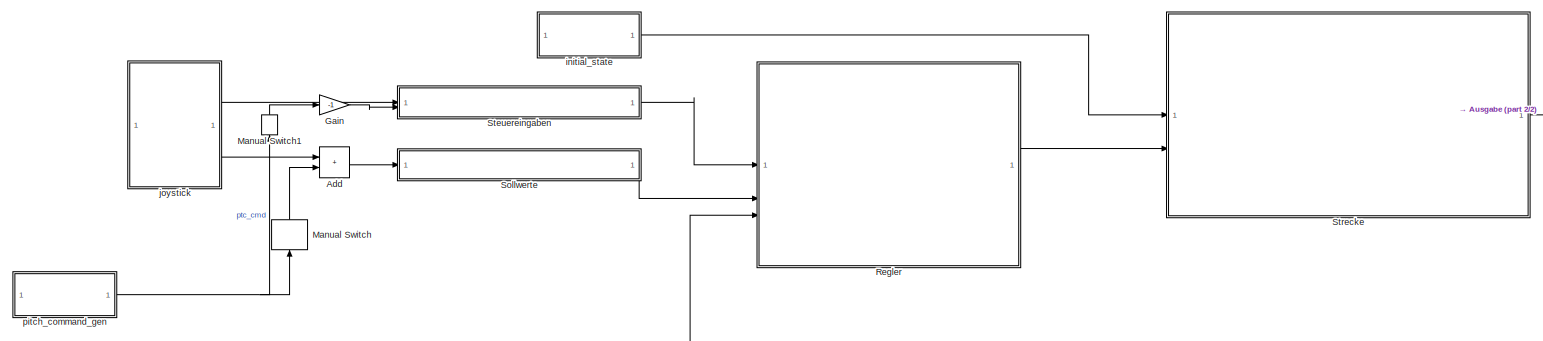
[diagram: root canvas - part 1/2, most of the canvas]
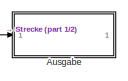
[diagram: root canvas - part 2/2, middle right region]
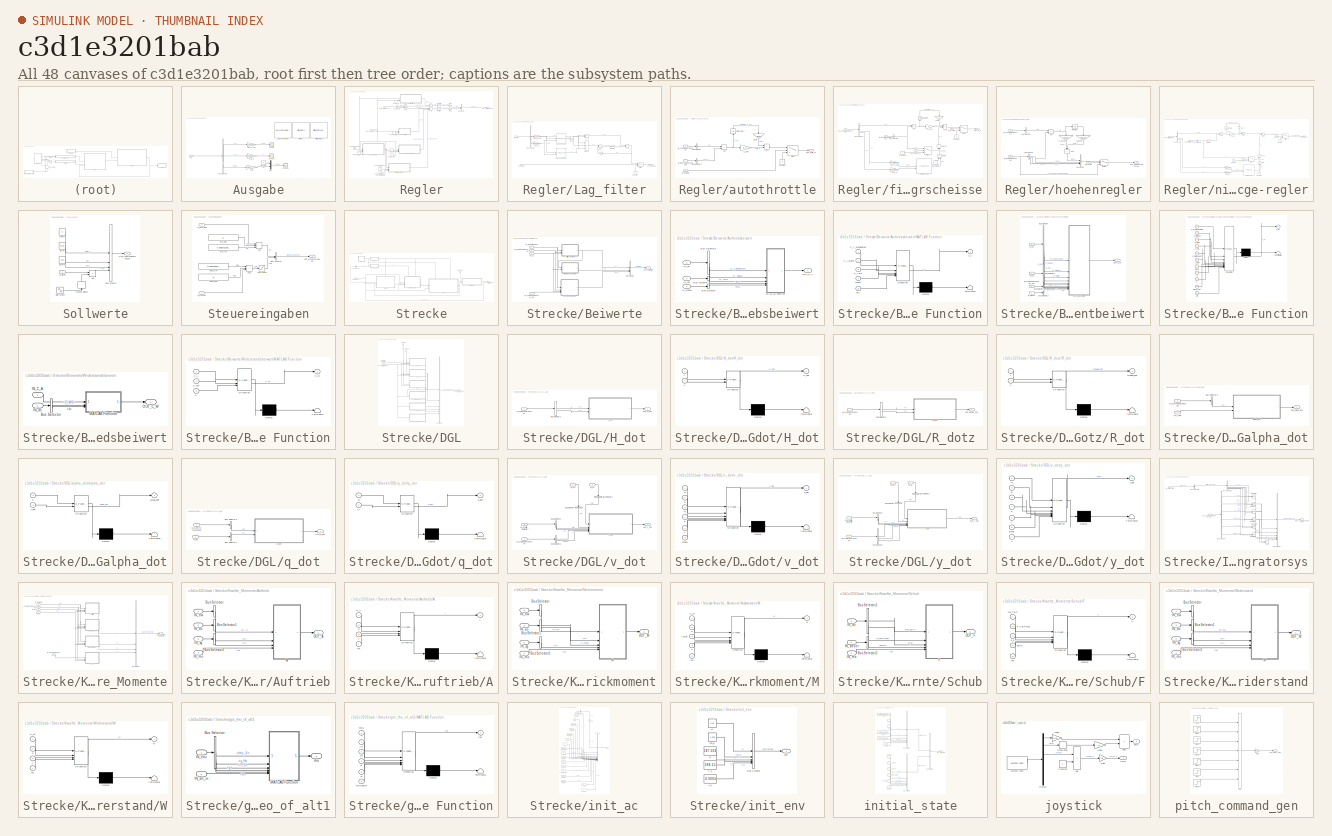
[diagram: thumbnail index - all 48 canvases of the model, root first then tree order]
MODEL slx_c3d1e3201bab
KIND model
CONFIG AbsTol = auto
CONFIG EnableMultiTasking = off
CONFIG FixedStep = 0.02
CONFIG MaxStep = auto
CONFIG MinStep = auto
CONFIG RelTol = 1e-3
CONFIG SampleTimeConstraint = Unconstrained
CONFIG SolverName = ode4
CONFIG StartTime = 0.0
CONFIG StopTime = 60
BLOCK [Sum] Add
  IconShape = rectangular
BLOCK [SubSystem] Ausgabe
BLOCK [AirspeedIndicatorBlock] Ausgabe/Airspeed Indicator
  ScaleMax = 800
  ScaleMin = 80
BLOCK [AltimeterBlock] Ausgabe/Altimeter
BLOCK [ArtificialHorizonBlock] Ausgabe/Artificial Horizon
BLOCK [BusSelector] Ausgabe/Bus Selector
  OutputSignals = V,H,theta
BLOCK [Constant] Ausgabe/Constant
  Value = 0
BLOCK [Gain] Ausgabe/Gain
  Gain = 1/0.0174533
BLOCK [Inport] Ausgabe/In1
BLOCK [Mux] Ausgabe/Mux
  DisplayOption = bar
  Inputs = 2
BLOCK [Scope] Ausgabe/Scope
  Floating = off
  NumInputPorts = 1
  ScopeSpecificationString = Simulink.scopes.TimeScopeBlockCfg('CurrentConfiguration', extmgr.ConfigurationSet(extmgr.Configuration('Core','General UI',true),extmgr.Configuration('Core','Source UI',true),extmgr.Configuration('Sources','WiredSimulink',true),extmgr.Configuration('Visuals','Time Domain',true),extmgr.Configuration('Tools','Plot Navigation',true),extmgr.Configuration('Tools','Measurements',true)),'Version','2024a'...<+1ch>
BLOCK [Scope] Ausgabe/Scope1
  Floating = off
  NumInputPorts = 1
  ScopeSpecificationString = Simulink.scopes.TimeScopeBlockCfg('CurrentConfiguration', extmgr.ConfigurationSet(extmgr.Configuration('Core','General UI',true),extmgr.Configuration('Core','Source UI',true),extmgr.Configuration('Sources','WiredSimulink',true,'DataLoggingVariableName','ScopeData1'),extmgr.Configuration('Visuals','Time Domain',true),extmgr.Configuration('Tools','Plot Navigation',true),extmgr.Configuration('Tools',...<+40ch>
BLOCK [Scope] Ausgabe/Scope2
  Floating = off
  NumInputPorts = 1
  ScopeSpecificationString = Simulink.scopes.TimeScopeBlockCfg('CurrentConfiguration', extmgr.ConfigurationSet(extmgr.Configuration('Core','General UI',true),extmgr.Configuration('Core','Source UI',true),extmgr.Configuration('Sources','WiredSimulink',true,'DataLoggingVariableName','ScopeData2'),extmgr.Configuration('Visuals','Time Domain',true),extmgr.Configuration('Tools','Plot Navigation',true),extmgr.Configuration('Tools',...<+40ch>
BLOCK [Gain] Ausgabe/m_to_ft
  Gain = 3.28084
BLOCK [Gain] Ausgabe/ms_to_knts
  Gain = 1.94384
BLOCK [Gain] Gain
  Gain = -1
  NameLocation = top
BLOCK [ManualSwitch] Manual Switch
  NameLocation = right
BLOCK [ManualSwitch] Manual Switch1
  CurrentSetting = 0
  NameLocation = right
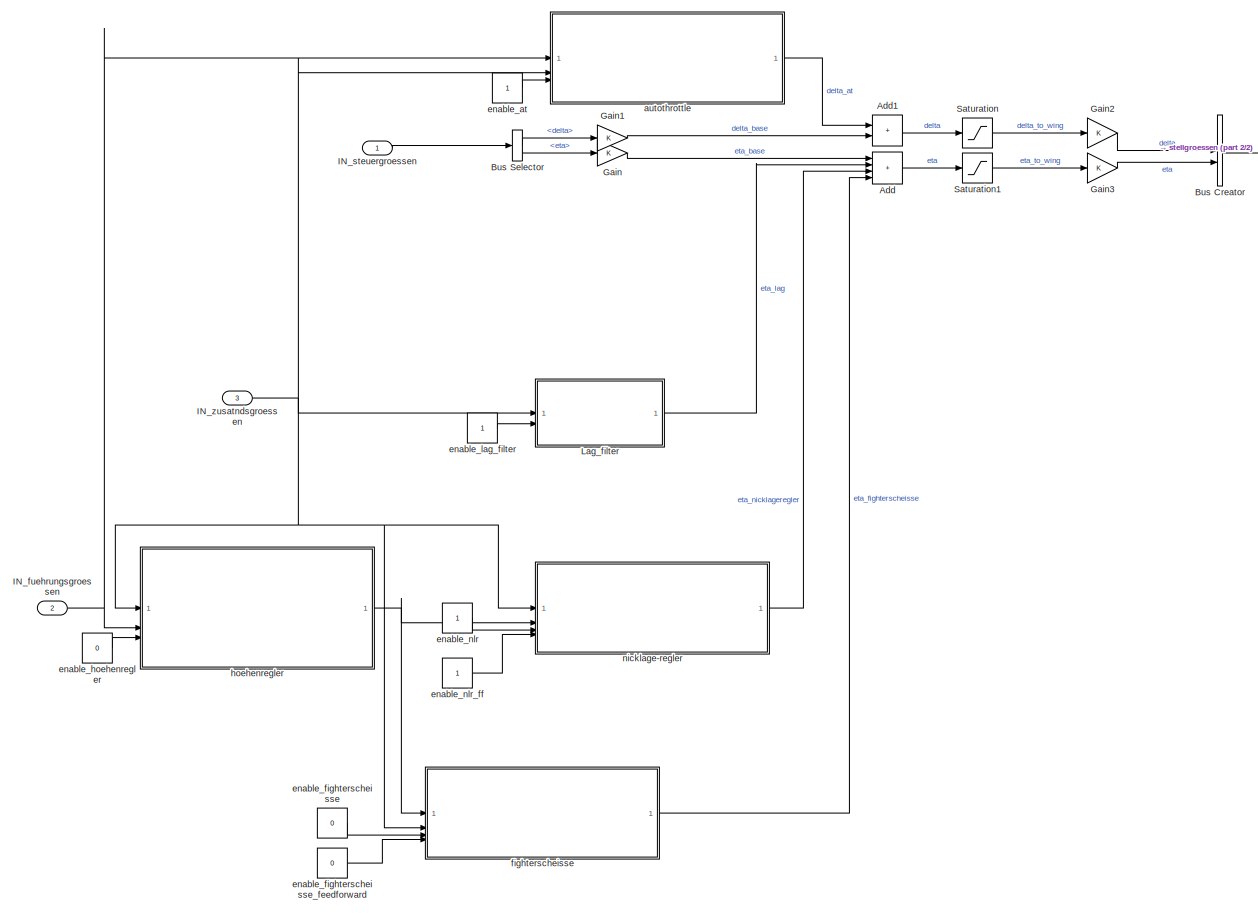
[diagram: Regler - part 1/2, most of the canvas]
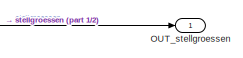
[diagram: Regler - part 2/2, top right region]
BLOCK [SubSystem] Regler
BLOCK [Sum] Regler/Add
  IconShape = rectangular
  Inputs = ++++
BLOCK [Sum] Regler/Add1
  IconShape = rectangular
BLOCK [BusCreator] Regler/Bus Creator
  DisplayOption = bar
  InheritFromInputs = on
  Inputs = 2
BLOCK [BusSelector] Regler/Bus Selector
  OutputSignals = delta,eta
BLOCK [Gain] Regler/Gain
BLOCK [Gain] Regler/Gain1
BLOCK [Gain] Regler/Gain2
BLOCK [Gain] Regler/Gain3
BLOCK [Inport] Regler/IN_fuehrungsgroessen
  NameLocation = left
  Port = 2
BLOCK [Inport] Regler/IN_steuergroessen
BLOCK [Inport] Regler/IN_zusatndsgroessen
  Port = 3
BLOCK [SubSystem] Regler/Lag_filter
BLOCK [Sum] Regler/Lag_filter/Add
  IconShape = rectangular
  Inputs = -+
BLOCK [Sum] Regler/Lag_filter/Add1
  IconShape = rectangular
BLOCK [BusSelector] Regler/Lag_filter/Bus Selector1
  OutputSignals = q,V,H
BLOCK [Constant] Regler/Lag_filter/Constant
  NameLocation = right
  Value = 0
BLOCK [Gain] Regler/Lag_filter/Gain
  Gain = -1
BLOCK [Inport] Regler/Lag_filter/IN_enable
  Port = 2
BLOCK [Inport] Regler/Lag_filter/IN_state
BLOCK [Integrator] Regler/Lag_filter/Integrator
BLOCK [Lookup_n-D] Regler/Lag_filter/Lag_k_lookup
  BreakpointsForDimension1 = [300 310 320 330 340 350 360 370 380 390 400 410 420 430 440 450 460 470 480 490 500 510 520 530 540 550 560 570 580 590 600]
  BreakpointsForDimension2 = [15000 16000 17000 18000 19000 20000 21000 22000 23000 24000 25000 26000 27000 28000 29000 30000 31000 32000 33000 34000 35000 36000 37000 38000 39000 40000 41000 42000 43000 44000 45000]
  BreakpointsForDimension3 = [5, 7]
  InputPortMap = u0,u1
  InternalRulePriority = Speed
  RndMeth = Simplest
  Table = [-1.9976095463894787 -2.0753225706470997 -2.1559415937600259 -2.2396262443393251 -2.3265447352480355 -2.416874457996534 -2.5108026232070042 -2.6085269505958921 -2.7102564123159163 -2.8162120339224832 -2.9266277576876485 -3.0417513734830788 -3.1618455229972073 -3.2871887836469087 -3.4180768391974956 -3.5548237448239162 -3.6977632951390516 -3.8472505045914884 -4.0036632106053025 -4.167403810910387 -...<+18871ch>
BLOCK [Lookup_n-D] Regler/Lag_filter/Lag_nst_lookup
  BreakpointsForDimension1 = [300 310 320 330 340 350 360 370 380 390 400 410 420 430 440 450 460 470 480 490 500 510 520 530 540 550 560 570 580 590 600]
  BreakpointsForDimension2 = [15000 16000 17000 18000 19000 20000 21000 22000 23000 24000 25000 26000 27000 28000 29000 30000 31000 32000 33000 34000 35000 36000 37000 38000 39000 40000 41000 42000 43000 44000 45000]
  BreakpointsForDimension3 = [5, 7]
  InputPortMap = u0,u1
  InternalRulePriority = Speed
  RndMeth = Simplest
  Table = [-2.4320248547469356 -2.4461261639414227 -2.4596550454821258 -2.4726374662492061 -2.4850979140208085 -2.4970595106053834 -2.5085441131709385 -2.5195724053436019 -2.5301639794038997 -2.5403374107069183 -2.5501103252844062 -2.5594994614464586 -2.5685207260831873 -2.5771892462680395 -2.5855194166815014 -2.5935249433037844 -2.6012188837657151 -2.60861368469661 -2.6157212163649342 -2.6225528048708258 -...<+18629ch>
BLOCK [Outport] Regler/Lag_filter/OUT_eta_lag
BLOCK [Product] Regler/Lag_filter/Product
  Inputs = 3
BLOCK [Product] Regler/Lag_filter/Product1
BLOCK [Switch] Regler/Lag_filter/Switch
  Criteria = u2 > Threshold
  InputSameDT = off
  SaturateOnIntegerOverflow = off
BLOCK [Gain] Regler/Lag_filter/d
  Gain = -1
BLOCK [Gain] Regler/Lag_filter/m_to_ft
  Gain = 3.28084
BLOCK [Gain] Regler/Lag_filter/ms_to_knts
  Gain = 1.94384
BLOCK [Outport] Regler/OUT_stellgroessen
BLOCK [Saturate] Regler/Saturation
  LowerLimit = 0
  UpperLimit = 1
BLOCK [Saturate] Regler/Saturation1
  LowerLimit = -20*pi/180
  UpperLimit = 20*pi/180
BLOCK [SubSystem] Regler/autothrottle
BLOCK [Sum] Regler/autothrottle/Add
  IconShape = rectangular
  Inputs = -+
BLOCK [Sum] Regler/autothrottle/Add1
  IconShape = rectangular
BLOCK [BusSelector] Regler/autothrottle/Bus Selector
  OutputSignals = V
BLOCK [BusSelector] Regler/autothrottle/Bus Selector1
  OutputSignals = vel_c
BLOCK [Constant] Regler/autothrottle/Constant
  NameLocation = right
  Value = 0
BLOCK [Inport] Regler/autothrottle/IN_enable
  Port = 3
BLOCK [Inport] Regler/autothrottle/IN_fuehrungsgroessen
BLOCK [Inport] Regler/autothrottle/IN_zusatndsgroessen
  Port = 2
BLOCK [Integrator] Regler/autothrottle/Integrator1
  LimitOutput = on
  LowerSaturationLimit = -1/0.001
  NameLocation = right
  UpperSaturationLimit = 1/0.001
BLOCK [Outport] Regler/autothrottle/OUT_delta_at
BLOCK [Switch] Regler/autothrottle/Switch
  Criteria = u2 > Threshold
  InputSameDT = off
  SaturateOnIntegerOverflow = off
BLOCK [Gain] Regler/autothrottle/i_gain
  Gain = 0.001
  NameLocation = right
BLOCK [Gain] Regler/autothrottle/p_gain
  Gain = 0.4
BLOCK [Constant] Regler/enable_at
  NameLocation = left
BLOCK [Constant] Regler/enable_fighterscheisse
  NameLocation = left
  Value = 0
BLOCK [Constant] Regler/enable_fighterscheisse_feedforward
  NameLocation = left
  Value = 0
BLOCK [Constant] Regler/enable_hoehenregler
  NameLocation = left
  Value = 0
BLOCK [Constant] Regler/enable_lag_filter
BLOCK [Constant] Regler/enable_nlr
BLOCK [Constant] Regler/enable_nlr_ff
BLOCK [SubSystem] Regler/fighterscheisse
BLOCK [Sum] Regler/fighterscheisse/Add
  IconShape = rectangular
  Inputs = -+
BLOCK [Sum] Regler/fighterscheisse/Add1
  IconShape = rectangular
  Inputs = --+
BLOCK [BusSelector] Regler/fighterscheisse/Bus Selector
  OutputSignals = q,V,H
BLOCK [BusSelector] Regler/fighterscheisse/Bus Selector1
  OutputSignals = q_c
BLOCK [Constant] Regler/fighterscheisse/Constant
  NameLocation = right
  Value = 0
BLOCK [Constant] Regler/fighterscheisse/Constant1
  Value = 0
BLOCK [Constant] Regler/fighterscheisse/Constant2
  NameLocation = right
BLOCK [Product] Regler/fighterscheisse/Divide
  Inputs = */
  NameLocation = right
BLOCK [Inport] Regler/fighterscheisse/IN_enable
  Port = 3
BLOCK [Inport] Regler/fighterscheisse/IN_enable_FF
  NameLocation = left
  Port = 4
BLOCK [Inport] Regler/fighterscheisse/IN_fuehrungsgroessen
BLOCK [Inport] Regler/fighterscheisse/IN_zusatndsgroessen
  Port = 2
BLOCK [Integrator] Regler/fighterscheisse/Integrator1
  LimitOutput = on
  LowerSaturationLimit = -0.1
  NameLocation = right
  UpperSaturationLimit = 0.1
BLOCK [Outport] Regler/fighterscheisse/OUT_q_fs
BLOCK [Product] Regler/fighterscheisse/Product
  NameLocation = right
BLOCK [Switch] Regler/fighterscheisse/Switch
  Criteria = u2 > Threshold
  InputSameDT = off
  SaturateOnIntegerOverflow = off
BLOCK [Switch] Regler/fighterscheisse/Switch1
  Criteria = u2 > Threshold
  InputSameDT = off
  SaturateOnIntegerOverflow = off
BLOCK [Gain] Regler/fighterscheisse/i_gain
  NameLocation = right
BLOCK [Lookup_n-D] Regler/fighterscheisse/k offen lookup
  BreakpointsForDimension1 = [200 210 220 230 240 250 260 270 280 290 300 310 320 330 340 350 360 370 380 390 400 410 420 430 440 450 460 470 480 490 500 510 520 530 540 550 560 570 580 590 600]
  BreakpointsForDimension2 = [10000 11000 12000 13000 14000 15000 16000 17000 18000 19000 20000 21000 22000 23000 24000 25000 26000 27000 28000 29000 30000 31000 32000 33000 34000 35000 36000 37000 38000 39000 40000]
  BreakpointsForDimension3 = [5, 7]
  InputPortMap = u0,u1
  InternalRulePriority = Speed
  RndMeth = Simplest
  Table = [-0.75968769240828538 -0.736146134850029 -0.71316486907241683 -0.69073470960094507 -0.66884654854113967 -0.647491355779479 -0.626660179173583 -0.60634414473186427 -0.5865344567827756 -0.56722239813384889 -0.54839933022067622 -0.53005669324599936 -0.51218600630906286 -0.49477886752539457 -0.4778269541371617 -0.46132202261426092 -0.44525590874628679 -0.42962052772552994 -0.41440787422114794 -0.39961...<+25079ch>
BLOCK [Gain] Regler/fighterscheisse/m_to_ft
  Gain = 3.28084
BLOCK [Gain] Regler/fighterscheisse/ms_to_knts
  Gain = 1.94384
BLOCK [Gain] Regler/fighterscheisse/p_gain
  Gain = 4
BLOCK [SubSystem] Regler/hoehenregler
BLOCK [Sum] Regler/hoehenregler/Add
  IconShape = rectangular
  Inputs = -+
BLOCK [Sum] Regler/hoehenregler/Add1
  IconShape = rectangular
  NameLocation = left
BLOCK [BusCreator] Regler/hoehenregler/Bus Creator
  DisplayOption = bar
  InheritFromInputs = on
  Inputs = 4
BLOCK [BusSelector] Regler/hoehenregler/Bus Selector
  OutputSignals = alt_c,vel_c,q_c
BLOCK [BusSelector] Regler/hoehenregler/Bus Selector1
  OutputSignals = H
BLOCK [Inport] Regler/hoehenregler/IN_enable
  Port = 3
BLOCK [Inport] Regler/hoehenregler/IN_fuehrungsgroessen
  Port = 2
BLOCK [Inport] Regler/hoehenregler/IN_zusatndsgroessen
BLOCK [Integrator] Regler/hoehenregler/Integrator
  LimitOutput = on
  LowerSaturationLimit = -0.4/0.00002
  UpperSaturationLimit = 0.4/0.00002
BLOCK [Outport] Regler/hoehenregler/OUT_fuehrungsgroessen
BLOCK [Switch] Regler/hoehenregler/Switch
  Criteria = u2 > Threshold
  InputSameDT = off
  SaturateOnIntegerOverflow = off
BLOCK [Gain] Regler/hoehenregler/i_alt_gain
  Gain = 0.00002
  NameLocation = right
BLOCK [Gain] Regler/hoehenregler/p_alt_gain
  Gain = 0.0002
  NameLocation = left
BLOCK [SubSystem] Regler/nicklage-regler
BLOCK [Sum] Regler/nicklage-regler/Add
  IconShape = rectangular
  Inputs = -+
BLOCK [Sum] Regler/nicklage-regler/Add1
  IconShape = rectangular
  Inputs = --
BLOCK [Sum] Regler/nicklage-regler/Add3
  IconShape = rectangular
BLOCK [BusSelector] Regler/nicklage-regler/Bus Selector
  OutputSignals = theta,V,H
BLOCK [BusSelector] Regler/nicklage-regler/Bus Selector1
  OutputSignals = q_c
BLOCK [Constant] Regler/nicklage-regler/Constant
  NameLocation = right
  Value = 0
BLOCK [Constant] Regler/nicklage-regler/Constant1
  Value = 0
BLOCK [Constant] Regler/nicklage-regler/Constant2
  NameLocation = right
BLOCK [Product] Regler/nicklage-regler/Divide
  Inputs = */
  NameLocation = right
BLOCK [Inport] Regler/nicklage-regler/IN_enable
  Port = 3
BLOCK [Inport] Regler/nicklage-regler/IN_enable_FF
  NameLocation = left
  Port = 4
BLOCK [Inport] Regler/nicklage-regler/IN_fuehrungsgroessen
  Port = 2
BLOCK [Inport] Regler/nicklage-regler/IN_zusatndsgroessen
BLOCK [Integrator] Regler/nicklage-regler/Integrator
BLOCK [Integrator] Regler/nicklage-regler/Integrator1
  LimitOutput = on
  LowerSaturationLimit = -0.3
  NameLocation = right
  UpperSaturationLimit = 0.3
BLOCK [Outport] Regler/nicklage-regler/OUT_eta_NLR
BLOCK [Product] Regler/nicklage-regler/Product
  NameLocation = right
BLOCK [Switch] Regler/nicklage-regler/Switch
  Criteria = u2 > Threshold
  InputSameDT = off
  SaturateOnIntegerOverflow = off
BLOCK [Switch] Regler/nicklage-regler/Switch1
  Criteria = u2 > Threshold
  InputSameDT = off
  SaturateOnIntegerOverflow = off
BLOCK [Gain] Regler/nicklage-regler/i_gain
  Gain = 2
  NameLocation = right
BLOCK [Lookup_n-D] Regler/nicklage-regler/k offen lookup
  BreakpointsForDimension1 = [200 210 220 230 240 250 260 270 280 290 300 310 320 330 340 350 360 370 380 390 400 410 420 430 440 450 460 470 480 490 500 510 520 530 540 550 560 570 580 590 600]
  BreakpointsForDimension2 = [10000 11000 12000 13000 14000 15000 16000 17000 18000 19000 20000 21000 22000 23000 24000 25000 26000 27000 28000 29000 30000 31000 32000 33000 34000 35000 36000 37000 38000 39000 40000]
  BreakpointsForDimension3 = [5, 7]
  InputPortMap = u0,u1
  InternalRulePriority = Speed
  RndMeth = Simplest
  Table = [-0.75968769240828538 -0.736146134850029 -0.71316486907241683 -0.69073470960094507 -0.66884654854113967 -0.647491355779479 -0.626660179173583 -0.60634414473186427 -0.5865344567827756 -0.56722239813384889 -0.54839933022067622 -0.53005669324599936 -0.51218600630906286 -0.49477886752539457 -0.4778269541371617 -0.46132202261426092 -0.44525590874628679 -0.42962052772552994 -0.41440787422114794 -0.39961...<+25079ch>
BLOCK [Gain] Regler/nicklage-regler/m_to_ft
  Gain = 3.28084
BLOCK [Gain] Regler/nicklage-regler/ms_to_knts
  Gain = 1.94384
BLOCK [Gain] Regler/nicklage-regler/p_gain
  Gain = 5
BLOCK [SubSystem] Sollwerte
BLOCK [Sum] Sollwerte/Add
  IconShape = rectangular
BLOCK [BusCreator] Sollwerte/Bus Creator
  DisplayOption = bar
  InheritFromInputs = on
  Inputs = 4
BLOCK [Inport] Sollwerte/IN_pitch
BLOCK [ManualSwitch] Sollwerte/Manual Switch
  CurrentSetting = 0
  NameLocation = right
BLOCK [Outport] Sollwerte/OUT_fuehrungsgroessen
BLOCK [Sin] Sollwerte/Sine Wave
  Amplitude = 0.1
  SampleTime = 0
BLOCK [Constant] Sollwerte/alt_m
  Value = 9750
BLOCK [Constant] Sollwerte/theta
  Value = 0
BLOCK [Constant] Sollwerte/vel_ms
  Value = 265
BLOCK [SubSystem] Steuereingaben
BLOCK [Sum] Steuereingaben/Add
  IconShape = rectangular
  Inputs = +++
BLOCK [Sum] Steuereingaben/Add1
  IconShape = rectangular
  Inputs = +++
BLOCK [BusCreator] Steuereingaben/Bus Creator
  DisplayOption = bar
  InheritFromInputs = on
  Inputs = 2
BLOCK [Inport] Steuereingaben/IN_eta_mod
  Port = 2
BLOCK [Inport] Steuereingaben/IN_thrust
BLOCK [Outport] Steuereingaben/OUT_steuergroessen
BLOCK [Saturate] Steuereingaben/Saturation
  LowerLimit = 0
  UpperLimit = 1
BLOCK [Constant] Steuereingaben/delta_dist
  Value = 0
BLOCK [Constant] Steuereingaben/delta_ref
  Value = 0.378775311827620
BLOCK [Constant] Steuereingaben/eta_dist
  Value = 0
BLOCK [Constant] Steuereingaben/eta_ref  
  Value = 0.098372238870606
BLOCK [SubSystem] Strecke
BLOCK [SubSystem] Strecke/Beiwerte
  PortSchema = {"entries":[{"content":{"sides":[{"content":{"connectorIds":["In1","In2","In3"]},"type":"ConnectorPlacement.EquallySpacedRectSide","uuid":"da868e00-0983-4992-b3a2-0cb597f348b4"},{"content":{"connectorIds":["Out1"],"side":"RIGHT"},"type":"ConnectorPlacement.EquallySpacedRectSide","uuid":"845dd281-7800-4d97-986c-16221190292f"},{"content":{"connectorIds":["In4"],"side":"TOP"},"type":"ConnectorPlaceme...<+257ch>
BLOCK [SubSystem] Strecke/Beiwerte/Auftriebsbeiwert
BLOCK [BusSelector] Strecke/Beiwerte/Auftriebsbeiwert/Bus Selector
  OutputSignals = eta
BLOCK [BusSelector] Strecke/Beiwerte/Auftriebsbeiwert/Bus Selector1
  OutputSignals = alpha
BLOCK [BusSelector] Strecke/Beiwerte/Auftriebsbeiwert/Bus Selector2
  OutputSignals = C_A_alpha0eta0,C_Aalpha,C_Aeta
BLOCK [Inport] Strecke/Beiwerte/Auftriebsbeiwert/IN_ac
  NameLocation = left
  Port = 3
BLOCK [Inport] Strecke/Beiwerte/Auftriebsbeiwert/IN_steuer
  NameLocation = left
BLOCK [Inport] Strecke/Beiwerte/Auftriebsbeiwert/IN_zg
  NameLocation = left
  Port = 2
BLOCK [SubSystem] Strecke/Beiwerte/Auftriebsbeiwert/MATLAB Function
  ErrorFcn = Stateflow.Translate.translate
  PermitHierarchicalResolution = ExplicitOnly
  SFBlockType = MATLAB Function
  TreatAsAtomicUnit = on
BLOCK [Demux] Strecke/Beiwerte/Auftriebsbeiwert/MATLAB Function/ Demux 
  Outputs = 1
BLOCK [S-Function] Strecke/Beiwerte/Auftriebsbeiwert/MATLAB Function/ SFunction 
  EnableBusSupport = on
  FunctionName = sf_sfun
  PortCounts = [5 2]
  SFcnIsStateOwnerBlock = off
  SFunctionDeploymentMode = off
  Tag = Stateflow S-Function 12
BLOCK [Terminator] Strecke/Beiwerte/Auftriebsbeiwert/MATLAB Function/ Terminator 
BLOCK [Inport] Strecke/Beiwerte/Auftriebsbeiwert/MATLAB Function/C_A_alpha0eta0
BLOCK [Inport] Strecke/Beiwerte/Auftriebsbeiwert/MATLAB Function/C_Aalpha
  Port = 2
BLOCK [Inport] Strecke/Beiwerte/Auftriebsbeiwert/MATLAB Function/C_Aeta
  Port = 3
BLOCK [Inport] Strecke/Beiwerte/Auftriebsbeiwert/MATLAB Function/alpha
  Port = 4
BLOCK [Outport] Strecke/Beiwerte/Auftriebsbeiwert/MATLAB Function/c_A
BLOCK [Inport] Strecke/Beiwerte/Auftriebsbeiwert/MATLAB Function/eta
  Port = 5
BLOCK [Outport] Strecke/Beiwerte/Auftriebsbeiwert/OUT_C_A
BLOCK [BusCreator] Strecke/Beiwerte/Bus Creator
  DisplayOption = bar
  InheritFromInputs = on
  Inputs = 3
BLOCK [Inport] Strecke/Beiwerte/IN_Steuereigaben
  NameLocation = left
BLOCK [Inport] Strecke/Beiwerte/IN_Zustandsgroessen
  NameLocation = left
  Port = 2
BLOCK [Inport] Strecke/Beiwerte/IN_ac
  NameLocation = left
  Port = 4
BLOCK [Inport] Strecke/Beiwerte/IN_zustandsgroessen_dot
  NameLocation = left
  Port = 3
BLOCK [SubSystem] Strecke/Beiwerte/Nickmomentbeiwert
BLOCK [BusSelector] Strecke/Beiwerte/Nickmomentbeiwert/Bus Selector
  OutputSignals = C_m_alpha0eta0,C_malpha,C_meta,C_mq,C_madot,l_mue
BLOCK [BusSelector] Strecke/Beiwerte/Nickmomentbeiwert/Bus Selector1
  OutputSignals = alpha,q,V
BLOCK [BusSelector] Strecke/Beiwerte/Nickmomentbeiwert/Bus Selector2
  OutputSignals = alpha_dot
BLOCK [BusSelector] Strecke/Beiwerte/Nickmomentbeiwert/Bus Selector3
  OutputSignals = eta
BLOCK [Inport] Strecke/Beiwerte/Nickmomentbeiwert/IN_ac
  Port = 3
BLOCK [Inport] Strecke/Beiwerte/Nickmomentbeiwert/IN_steuer
BLOCK [Inport] Strecke/Beiwerte/Nickmomentbeiwert/IN_zg
  Port = 2
BLOCK [Inport] Strecke/Beiwerte/Nickmomentbeiwert/IN_zustandsgroessen_dot
  Port = 4
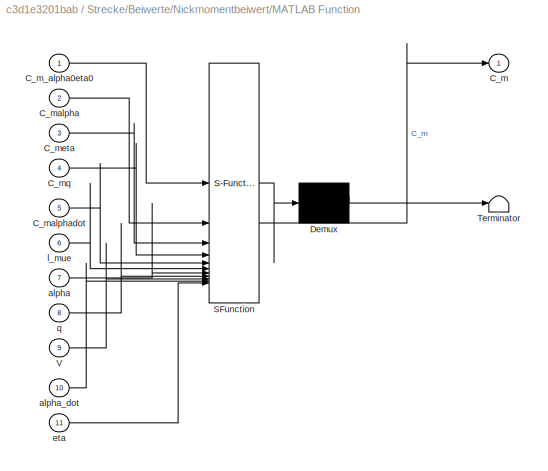
BLOCK [SubSystem] Strecke/Beiwerte/Nickmomentbeiwert/MATLAB Function
  ErrorFcn = Stateflow.Translate.translate
  PermitHierarchicalResolution = ExplicitOnly
  SFBlockType = MATLAB Function
  TreatAsAtomicUnit = on
BLOCK [Demux] Strecke/Beiwerte/Nickmomentbeiwert/MATLAB Function/ Demux 
  Outputs = 1
BLOCK [S-Function] Strecke/Beiwerte/Nickmomentbeiwert/MATLAB Function/ SFunction 
  EnableBusSupport = on
  FunctionName = sf_sfun
  PortCounts = [11 2]
  SFcnIsStateOwnerBlock = off
  SFunctionDeploymentMode = off
  Tag = Stateflow S-Function 14
BLOCK [Terminator] Strecke/Beiwerte/Nickmomentbeiwert/MATLAB Function/ Terminator 
BLOCK [Outport] Strecke/Beiwerte/Nickmomentbeiwert/MATLAB Function/C_m
BLOCK [Inport] Strecke/Beiwerte/Nickmomentbeiwert/MATLAB Function/C_m_alpha0eta0
BLOCK [Inport] Strecke/Beiwerte/Nickmomentbeiwert/MATLAB Function/C_malpha
  Port = 2
BLOCK [Inport] Strecke/Beiwerte/Nickmomentbeiwert/MATLAB Function/C_malphadot
  Port = 5
BLOCK [Inport] Strecke/Beiwerte/Nickmomentbeiwert/MATLAB Function/C_meta
  Port = 3
BLOCK [Inport] Strecke/Beiwerte/Nickmomentbeiwert/MATLAB Function/C_mq
  Port = 4
BLOCK [Inport] Strecke/Beiwerte/Nickmomentbeiwert/MATLAB Function/V
  Port = 9
BLOCK [Inport] Strecke/Beiwerte/Nickmomentbeiwert/MATLAB Function/alpha
  Port = 7
BLOCK [Inport] Strecke/Beiwerte/Nickmomentbeiwert/MATLAB Function/alpha_dot
  Port = 10
BLOCK [Inport] Strecke/Beiwerte/Nickmomentbeiwert/MATLAB Function/eta
  Port = 11
BLOCK [Inport] Strecke/Beiwerte/Nickmomentbeiwert/MATLAB Function/l_mue
  Port = 6
BLOCK [Inport] Strecke/Beiwerte/Nickmomentbeiwert/MATLAB Function/q
  Port = 8
BLOCK [Outport] Strecke/Beiwerte/Nickmomentbeiwert/OUT_C_m
BLOCK [Outport] Strecke/Beiwerte/OUT_beiwerte
BLOCK [SubSystem] Strecke/Beiwerte/Widerstandsbeiwert
BLOCK [BusSelector] Strecke/Beiwerte/Widerstandsbeiwert/Bus Selector
  OutputSignals = C_W0,k
BLOCK [Inport] Strecke/Beiwerte/Widerstandsbeiwert/IN_C_A
  NameLocation = left
BLOCK [Inport] Strecke/Beiwerte/Widerstandsbeiwert/IN_ac
  NameLocation = left
  Port = 2
BLOCK [SubSystem] Strecke/Beiwerte/Widerstandsbeiwert/MATLAB Function
  ErrorFcn = Stateflow.Translate.translate
  PermitHierarchicalResolution = ExplicitOnly
  SFBlockType = MATLAB Function
  TreatAsAtomicUnit = on
BLOCK [Demux] Strecke/Beiwerte/Widerstandsbeiwert/MATLAB Function/ Demux 
  Outputs = 1
BLOCK [S-Function] Strecke/Beiwerte/Widerstandsbeiwert/MATLAB Function/ SFunction 
  EnableBusSupport = on
  FunctionName = sf_sfun
  PortCounts = [3 2]
  SFcnIsStateOwnerBlock = off
  SFunctionDeploymentMode = off
  Tag = Stateflow S-Function 13
BLOCK [Terminator] Strecke/Beiwerte/Widerstandsbeiwert/MATLAB Function/ Terminator 
BLOCK [Inport] Strecke/Beiwerte/Widerstandsbeiwert/MATLAB Function/C_A
BLOCK [Outport] Strecke/Beiwerte/Widerstandsbeiwert/MATLAB Function/C_W
BLOCK [Inport] Strecke/Beiwerte/Widerstandsbeiwert/MATLAB Function/C_W0
  Port = 2
BLOCK [Inport] Strecke/Beiwerte/Widerstandsbeiwert/MATLAB Function/k
  Port = 3
BLOCK [Outport] Strecke/Beiwerte/Widerstandsbeiwert/OUT_C_W
BLOCK [BusSelector] Strecke/Bus Selector
  OutputSignals = H
BLOCK [SubSystem] Strecke/DGL
  PortSchema = {"entries":[{"content":{"sides":[{"content":{"connectorIds":["In1","In2"]},"type":"ConnectorPlacement.EquallySpacedRectSide","uuid":"da868e00-0983-4992-b3a2-0cb597f348b4"},{"content":{"connectorIds":["Out1"],"side":"RIGHT"},"type":"ConnectorPlacement.EquallySpacedRectSide","uuid":"845dd281-7800-4d97-986c-16221190292f"},{"content":{"connectorIds":["In3","In4"],"side":"TOP"},"type":"ConnectorPlaceme...<+257ch>
BLOCK [BusCreator] Strecke/DGL/Bus Creator
  DisplayOption = bar
  InheritFromInputs = on
  Inputs = 6
BLOCK [SubSystem] Strecke/DGL/H_dot
BLOCK [BusSelector] Strecke/DGL/H_dot/Bus Selector3
  OutputSignals = y,V
BLOCK [SubSystem] Strecke/DGL/H_dot/H_dot
  ErrorFcn = Stateflow.Translate.translate
  PermitHierarchicalResolution = ExplicitOnly
  SFBlockType = MATLAB Function
  TreatAsAtomicUnit = on
BLOCK [Demux] Strecke/DGL/H_dot/H_dot/ Demux 
  Outputs = 1
BLOCK [S-Function] Strecke/DGL/H_dot/H_dot/ SFunction 
  EnableBusSupport = on
  FunctionName = sf_sfun
  PortCounts = [2 2]
  SFcnIsStateOwnerBlock = off
  SFunctionDeploymentMode = off
  Tag = Stateflow S-Function 6
BLOCK [Terminator] Strecke/DGL/H_dot/H_dot/ Terminator 
BLOCK [Outport] Strecke/DGL/H_dot/H_dot/H_dot
BLOCK [Inport] Strecke/DGL/H_dot/H_dot/V
  Port = 2
BLOCK [Inport] Strecke/DGL/H_dot/H_dot/y
BLOCK [Inport] Strecke/DGL/H_dot/IN_zustandsgroessen
BLOCK [Outport] Strecke/DGL/H_dot/OUT_H_dot
BLOCK [Inport] Strecke/DGL/IN_aircraft
  NameLocation = left
  Port = 4
BLOCK [Inport] Strecke/DGL/IN_enviroment
  NameLocation = right
  Port = 3
BLOCK [Inport] Strecke/DGL/IN_kraefte_momente
  NameLocation = left
BLOCK [Inport] Strecke/DGL/IN_zustandsgroessen
  NameLocation = left
  Port = 2
BLOCK [Outport] Strecke/DGL/OUT_zustandsgroessen_dot
BLOCK [SubSystem] Strecke/DGL/R_dotz
BLOCK [BusSelector] Strecke/DGL/R_dotz/Bus Selector3
  OutputSignals = y,V
BLOCK [Inport] Strecke/DGL/R_dotz/IN_zustandsgroessen
BLOCK [Outport] Strecke/DGL/R_dotz/OUT_Range_dot
BLOCK [SubSystem] Strecke/DGL/R_dotz/R_dot
  ErrorFcn = Stateflow.Translate.translate
  PermitHierarchicalResolution = ExplicitOnly
  SFBlockType = MATLAB Function
  TreatAsAtomicUnit = on
BLOCK [Demux] Strecke/DGL/R_dotz/R_dot/ Demux 
  Outputs = 1
BLOCK [S-Function] Strecke/DGL/R_dotz/R_dot/ SFunction 
  EnableBusSupport = on
  FunctionName = sf_sfun
  PortCounts = [2 2]
  SFcnIsStateOwnerBlock = off
  SFunctionDeploymentMode = off
  Tag = Stateflow S-Function 7
BLOCK [Terminator] Strecke/DGL/R_dotz/R_dot/ Terminator 
BLOCK [Outport] Strecke/DGL/R_dotz/R_dot/Range_dot
BLOCK [Inport] Strecke/DGL/R_dotz/R_dot/V
  Port = 2
BLOCK [Inport] Strecke/DGL/R_dotz/R_dot/y
BLOCK [SubSystem] Strecke/DGL/alpha_dot
BLOCK [BusSelector] Strecke/DGL/alpha_dot/Bus Selector3
  OutputSignals = q
BLOCK [Inport] Strecke/DGL/alpha_dot/IN_y_dot
BLOCK [Inport] Strecke/DGL/alpha_dot/IN_zustandsgroessen
  Port = 2
BLOCK [Outport] Strecke/DGL/alpha_dot/OUT_alpha_dot
BLOCK [SubSystem] Strecke/DGL/alpha_dot/alpha_dot
  ErrorFcn = Stateflow.Translate.translate
  PermitHierarchicalResolution = ExplicitOnly
  SFBlockType = MATLAB Function
  TreatAsAtomicUnit = on
BLOCK [Demux] Strecke/DGL/alpha_dot/alpha_dot/ Demux 
  Outputs = 1
BLOCK [S-Function] Strecke/DGL/alpha_dot/alpha_dot/ SFunction 
  EnableBusSupport = on
  FunctionName = sf_sfun
  PortCounts = [2 2]
  SFcnIsStateOwnerBlock = off
  SFunctionDeploymentMode = off
  Tag = Stateflow S-Function 5
BLOCK [Terminator] Strecke/DGL/alpha_dot/alpha_dot/ Terminator 
BLOCK [Outport] Strecke/DGL/alpha_dot/alpha_dot/alpha_dot
BLOCK [Inport] Strecke/DGL/alpha_dot/alpha_dot/q
BLOCK [Inport] Strecke/DGL/alpha_dot/alpha_dot/y_dot
  Port = 2
BLOCK [SubSystem] Strecke/DGL/q_dot
BLOCK [BusSelector] Strecke/DGL/q_dot/Bus Selector1
  OutputSignals = I_y
BLOCK [BusSelector] Strecke/DGL/q_dot/Bus Selector2
  OutputSignals = M
BLOCK [Inport] Strecke/DGL/q_dot/IN_ac
BLOCK [Inport] Strecke/DGL/q_dot/IN_kraefte_momente
  Port = 2
BLOCK [Outport] Strecke/DGL/q_dot/OUT_q_dot
BLOCK [SubSystem] Strecke/DGL/q_dot/q_dot
  ErrorFcn = Stateflow.Translate.translate
  PermitHierarchicalResolution = ExplicitOnly
  SFBlockType = MATLAB Function
  TreatAsAtomicUnit = on
BLOCK [Demux] Strecke/DGL/q_dot/q_dot/ Demux 
  Outputs = 1
BLOCK [S-Function] Strecke/DGL/q_dot/q_dot/ SFunction 
  EnableBusSupport = on
  FunctionName = sf_sfun
  PortCounts = [2 2]
  SFcnIsStateOwnerBlock = off
  SFunctionDeploymentMode = off
  Tag = Stateflow S-Function 4
BLOCK [Terminator] Strecke/DGL/q_dot/q_dot/ Terminator 
BLOCK [Inport] Strecke/DGL/q_dot/q_dot/I_y
  Port = 2
BLOCK [Inport] Strecke/DGL/q_dot/q_dot/M
BLOCK [Outport] Strecke/DGL/q_dot/q_dot/q_dot
BLOCK [SubSystem] Strecke/DGL/v_dot
BLOCK [BusSelector] Strecke/DGL/v_dot/Bus Selector
  NameLocation = left
  OutputSignals = g
BLOCK [BusSelector] Strecke/DGL/v_dot/Bus Selector1
  NameLocation = left
  OutputSignals = m
BLOCK [BusSelector] Strecke/DGL/v_dot/Bus Selector2
  OutputSignals = W,F
BLOCK [BusSelector] Strecke/DGL/v_dot/Bus Selector3
  OutputSignals = y,alpha
BLOCK [Inport] Strecke/DGL/v_dot/IN_ac
  Port = 2
BLOCK [Inport] Strecke/DGL/v_dot/IN_env
BLOCK [Inport] Strecke/DGL/v_dot/IN_kraefte_momente
  Port = 3
BLOCK [Inport] Strecke/DGL/v_dot/IN_zustandsgroessen
  Port = 4
BLOCK [Outport] Strecke/DGL/v_dot/OUT_v_dot
BLOCK [SubSystem] Strecke/DGL/v_dot/v_dot
  ErrorFcn = Stateflow.Translate.translate
  PermitHierarchicalResolution = ExplicitOnly
  SFBlockType = MATLAB Function
  TreatAsAtomicUnit = on
BLOCK [Demux] Strecke/DGL/v_dot/v_dot/ Demux 
  Outputs = 1
BLOCK [S-Function] Strecke/DGL/v_dot/v_dot/ SFunction 
  EnableBusSupport = on
  FunctionName = sf_sfun
  PortCounts = [6 2]
  SFcnIsStateOwnerBlock = off
  SFunctionDeploymentMode = off
  Tag = Stateflow S-Function 2
BLOCK [Terminator] Strecke/DGL/v_dot/v_dot/ Terminator 
BLOCK [Inport] Strecke/DGL/v_dot/v_dot/F
  Port = 4
BLOCK [Inport] Strecke/DGL/v_dot/v_dot/W
  Port = 3
BLOCK [Inport] Strecke/DGL/v_dot/v_dot/alpha
  Port = 6
BLOCK [Inport] Strecke/DGL/v_dot/v_dot/g
  Port = 2
BLOCK [Inport] Strecke/DGL/v_dot/v_dot/m
BLOCK [Outport] Strecke/DGL/v_dot/v_dot/v_dot
BLOCK [Inport] Strecke/DGL/v_dot/v_dot/y
  Port = 5
BLOCK [SubSystem] Strecke/DGL/y_dot
BLOCK [BusSelector] Strecke/DGL/y_dot/Bus Selector
  NameLocation = left
  OutputSignals = g
BLOCK [BusSelector] Strecke/DGL/y_dot/Bus Selector1
  NameLocation = left
  OutputSignals = m
BLOCK [BusSelector] Strecke/DGL/y_dot/Bus Selector2
  OutputSignals = A,F
BLOCK [BusSelector] Strecke/DGL/y_dot/Bus Selector3
  OutputSignals = y,alpha,V
BLOCK [Inport] Strecke/DGL/y_dot/IN_ac
  Port = 2
BLOCK [Inport] Strecke/DGL/y_dot/IN_env
BLOCK [Inport] Strecke/DGL/y_dot/IN_kraefte_momente
  Port = 3
BLOCK [Inport] Strecke/DGL/y_dot/IN_zustandsgroessen
  Port = 4
BLOCK [Outport] Strecke/DGL/y_dot/OUT_y_dot
BLOCK [SubSystem] Strecke/DGL/y_dot/y_dot
  ErrorFcn = Stateflow.Translate.translate
  PermitHierarchicalResolution = ExplicitOnly
  SFBlockType = MATLAB Function
  TreatAsAtomicUnit = on
BLOCK [Demux] Strecke/DGL/y_dot/y_dot/ Demux 
  Outputs = 1
BLOCK [S-Function] Strecke/DGL/y_dot/y_dot/ SFunction 
  EnableBusSupport = on
  FunctionName = sf_sfun
  PortCounts = [7 2]
  SFcnIsStateOwnerBlock = off
  SFunctionDeploymentMode = off
  Tag = Stateflow S-Function 3
BLOCK [Terminator] Strecke/DGL/y_dot/y_dot/ Terminator 
BLOCK [Inport] Strecke/DGL/y_dot/y_dot/A
  Port = 3
BLOCK [Inport] Strecke/DGL/y_dot/y_dot/F
  Port = 4
BLOCK [Inport] Strecke/DGL/y_dot/y_dot/V
  Port = 7
BLOCK [Inport] Strecke/DGL/y_dot/y_dot/alpha
  Port = 6
BLOCK [Inport] Strecke/DGL/y_dot/y_dot/g
  Port = 2
BLOCK [Inport] Strecke/DGL/y_dot/y_dot/m
BLOCK [Inport] Strecke/DGL/y_dot/y_dot/y
  Port = 5
BLOCK [Outport] Strecke/DGL/y_dot/y_dot/y_dot
BLOCK [Inport] Strecke/IN_StellGroessen
  Port = 2
BLOCK [Inport] Strecke/IN_initial_state
  NameLocation = top
BLOCK [SubSystem] Strecke/Integratorsys
BLOCK [Sum] Strecke/Integratorsys/Add
  IconShape = rectangular
BLOCK [BusCreator] Strecke/Integratorsys/Bus Creator
  DisplayOption = bar
  InheritFromInputs = on
  Inputs = 7
BLOCK [BusSelector] Strecke/Integratorsys/Bus Selector
  OutputSignals = v_dot,y_dot,q_dot,alpha_dot,H_dot,Range_dot
BLOCK [BusSelector] Strecke/Integratorsys/Bus Selector1
  OutputSignals = initial_state_abs,initial_state_dot
BLOCK [BusSelector] Strecke/Integratorsys/Bus Selector2
  OutputSignals = V_0,y_0,q_0,alpha_0,H_0,R_0
BLOCK [Inport] Strecke/Integratorsys/IN_initial_state
BLOCK [Inport] Strecke/Integratorsys/IN_zustandsgroessen_dot
  Port = 2
BLOCK [Integrator] Strecke/Integratorsys/Integrator
  InitialConditionSource = external
BLOCK [Integrator] Strecke/Integratorsys/Integrator1
  InitialConditionSource = external
BLOCK [Integrator] Strecke/Integratorsys/Integrator2
  InitialConditionSource = external
BLOCK [Integrator] Strecke/Integratorsys/Integrator3
  InitialConditionSource = external
BLOCK [Integrator] Strecke/Integratorsys/Integrator4
  InitialConditionSource = external
BLOCK [Integrator] Strecke/Integratorsys/Integrator5
  InitialConditionSource = external
BLOCK [Outport] Strecke/Integratorsys/OUT_zustandsgroessen
BLOCK [SubSystem] Strecke/Kraefte_Momente
  PortSchema = {"entries":[{"content":{"sides":[{"content":{"connectorIds":["In1","In2","In3"]},"type":"ConnectorPlacement.EquallySpacedRectSide","uuid":"7b0f2669-d239-479f-ac51-e28c31c4b0e7"},{"content":{"connectorIds":["Out1"],"side":"RIGHT"},"type":"ConnectorPlacement.EquallySpacedRectSide","uuid":"e76e6a99-f945-4a89-9fd0-954498cc0474"},{"content":{"connectorIds":["In4","In5"],"side":"TOP"},"type":"ConnectorP...<+263ch>
BLOCK [SubSystem] Strecke/Kraefte_Momente/Auftrieb
BLOCK [SubSystem] Strecke/Kraefte_Momente/Auftrieb/A
  ErrorFcn = Stateflow.Translate.translate
  PermitHierarchicalResolution = ExplicitOnly
  SFBlockType = MATLAB Function
  TreatAsAtomicUnit = on
BLOCK [Demux] Strecke/Kraefte_Momente/Auftrieb/A/ Demux 
  Outputs = 1
BLOCK [S-Function] Strecke/Kraefte_Momente/Auftrieb/A/ SFunction 
  EnableBusSupport = on
  FunctionName = sf_sfun
  PortCounts = [4 2]
  SFcnIsStateOwnerBlock = off
  SFunctionDeploymentMode = off
  Tag = Stateflow S-Function 8
BLOCK [Terminator] Strecke/Kraefte_Momente/Auftrieb/A/ Terminator 
BLOCK [Outport] Strecke/Kraefte_Momente/Auftrieb/A/A
BLOCK [Inport] Strecke/Kraefte_Momente/Auftrieb/A/C_A
BLOCK [Inport] Strecke/Kraefte_Momente/Auftrieb/A/S
  Port = 2
BLOCK [Inport] Strecke/Kraefte_Momente/Auftrieb/A/V
  Port = 3
BLOCK [Inport] Strecke/Kraefte_Momente/Auftrieb/A/rho
  Port = 4
BLOCK [BusSelector] Strecke/Kraefte_Momente/Auftrieb/Bus Selector
  OutputSignals = C_A
BLOCK [BusSelector] Strecke/Kraefte_Momente/Auftrieb/Bus Selector1
  OutputSignals = S
BLOCK [BusSelector] Strecke/Kraefte_Momente/Auftrieb/Bus Selector2
  OutputSignals = V
BLOCK [Inport] Strecke/Kraefte_Momente/Auftrieb/IN_ac
  Port = 3
BLOCK [Inport] Strecke/Kraefte_Momente/Auftrieb/IN_bw
BLOCK [Inport] Strecke/Kraefte_Momente/Auftrieb/IN_rho
  Port = 4
BLOCK [Inport] Strecke/Kraefte_Momente/Auftrieb/IN_zg
  Port = 2
BLOCK [Outport] Strecke/Kraefte_Momente/Auftrieb/OUT_A
BLOCK [BusCreator] Strecke/Kraefte_Momente/Bus Creator
  DisplayOption = bar
  InheritFromInputs = on
  Inputs = 4
BLOCK [Inport] Strecke/Kraefte_Momente/IN_ac
  NameLocation = left
  Port = 5
BLOCK [Inport] Strecke/Kraefte_Momente/IN_beiwerte
  NameLocation = left
  Port = 2
BLOCK [Inport] Strecke/Kraefte_Momente/IN_rho
  NameLocation = left
  Port = 4
BLOCK [Inport] Strecke/Kraefte_Momente/IN_steuereingaben
BLOCK [Inport] Strecke/Kraefte_Momente/IN_zustandsgroessen
  NameLocation = left
  Port = 3
BLOCK [SubSystem] Strecke/Kraefte_Momente/Nickmoment
BLOCK [BusSelector] Strecke/Kraefte_Momente/Nickmoment/Bus Selector
  OutputSignals = C_m
BLOCK [BusSelector] Strecke/Kraefte_Momente/Nickmoment/Bus Selector1
  OutputSignals = S,l_mue
BLOCK [BusSelector] Strecke/Kraefte_Momente/Nickmoment/Bus Selector2
  OutputSignals = V
BLOCK [Inport] Strecke/Kraefte_Momente/Nickmoment/IN_ac
  Port = 3
BLOCK [Inport] Strecke/Kraefte_Momente/Nickmoment/IN_bw
BLOCK [Inport] Strecke/Kraefte_Momente/Nickmoment/IN_rho
  Port = 4
BLOCK [Inport] Strecke/Kraefte_Momente/Nickmoment/IN_zg
  Port = 2
BLOCK [SubSystem] Strecke/Kraefte_Momente/Nickmoment/M
  ErrorFcn = Stateflow.Translate.translate
  PermitHierarchicalResolution = ExplicitOnly
  SFBlockType = MATLAB Function
  TreatAsAtomicUnit = on
BLOCK [Demux] Strecke/Kraefte_Momente/Nickmoment/M/ Demux 
  Outputs = 1
BLOCK [S-Function] Strecke/Kraefte_Momente/Nickmoment/M/ SFunction 
  EnableBusSupport = on
  FunctionName = sf_sfun
  PortCounts = [5 2]
  SFcnIsStateOwnerBlock = off
  SFunctionDeploymentMode = off
  Tag = Stateflow S-Function 10
BLOCK [Terminator] Strecke/Kraefte_Momente/Nickmoment/M/ Terminator 
BLOCK [Inport] Strecke/Kraefte_Momente/Nickmoment/M/C_m
BLOCK [Outport] Strecke/Kraefte_Momente/Nickmoment/M/M
BLOCK [Inport] Strecke/Kraefte_Momente/Nickmoment/M/S
  Port = 2
BLOCK [Inport] Strecke/Kraefte_Momente/Nickmoment/M/V
  Port = 4
BLOCK [Inport] Strecke/Kraefte_Momente/Nickmoment/M/l_mue
  Port = 3
BLOCK [Inport] Strecke/Kraefte_Momente/Nickmoment/M/rho
  Port = 5
BLOCK [Outport] Strecke/Kraefte_Momente/Nickmoment/OUT_M
BLOCK [Outport] Strecke/Kraefte_Momente/OUT_kraefte_momente
BLOCK [SubSystem] Strecke/Kraefte_Momente/Schub
BLOCK [BusSelector] Strecke/Kraefte_Momente/Schub/Bus Selector1
  OutputSignals = rho_TBP,F_TBPmax,n_p
BLOCK [BusSelector] Strecke/Kraefte_Momente/Schub/Bus Selector2
  OutputSignals = delta
BLOCK [SubSystem] Strecke/Kraefte_Momente/Schub/F
  ErrorFcn = Stateflow.Translate.translate
  PermitHierarchicalResolution = ExplicitOnly
  SFBlockType = MATLAB Function
  TreatAsAtomicUnit = on
BLOCK [Demux] Strecke/Kraefte_Momente/Schub/F/ Demux 
  Outputs = 1
BLOCK [S-Function] Strecke/Kraefte_Momente/Schub/F/ SFunction 
  EnableBusSupport = on
  FunctionName = sf_sfun
  PortCounts = [5 2]
  SFcnIsStateOwnerBlock = off
  SFunctionDeploymentMode = off
  Tag = Stateflow S-Function 11
BLOCK [Terminator] Strecke/Kraefte_Momente/Schub/F/ Terminator 
BLOCK [Outport] Strecke/Kraefte_Momente/Schub/F/F
BLOCK [Inport] Strecke/Kraefte_Momente/Schub/F/F_TBPmax
  Port = 2
BLOCK [Inport] Strecke/Kraefte_Momente/Schub/F/delta
  Port = 4
BLOCK [Inport] Strecke/Kraefte_Momente/Schub/F/n_p
  Port = 3
BLOCK [Inport] Strecke/Kraefte_Momente/Schub/F/rho
  Port = 5
BLOCK [Inport] Strecke/Kraefte_Momente/Schub/F/rho_TBP
BLOCK [Inport] Strecke/Kraefte_Momente/Schub/IN_ac
  Port = 2
BLOCK [Inport] Strecke/Kraefte_Momente/Schub/IN_rho
  Port = 3
BLOCK [Inport] Strecke/Kraefte_Momente/Schub/IN_steuer
BLOCK [Outport] Strecke/Kraefte_Momente/Schub/OUT_F
BLOCK [SubSystem] Strecke/Kraefte_Momente/Widerstand
BLOCK [BusSelector] Strecke/Kraefte_Momente/Widerstand/Bus Selector
  OutputSignals = C_W
BLOCK [BusSelector] Strecke/Kraefte_Momente/Widerstand/Bus Selector1
  OutputSignals = S
BLOCK [BusSelector] Strecke/Kraefte_Momente/Widerstand/Bus Selector2
  OutputSignals = V
BLOCK [Inport] Strecke/Kraefte_Momente/Widerstand/IN_ac
  Port = 3
BLOCK [Inport] Strecke/Kraefte_Momente/Widerstand/IN_bw
BLOCK [Inport] Strecke/Kraefte_Momente/Widerstand/IN_rho
  Port = 4
BLOCK [Inport] Strecke/Kraefte_Momente/Widerstand/IN_zg
  Port = 2
BLOCK [Outport] Strecke/Kraefte_Momente/Widerstand/OUT_W
BLOCK [SubSystem] Strecke/Kraefte_Momente/Widerstand/W
  ErrorFcn = Stateflow.Translate.translate
  PermitHierarchicalResolution = ExplicitOnly
  SFBlockType = MATLAB Function
  TreatAsAtomicUnit = on
BLOCK [Demux] Strecke/Kraefte_Momente/Widerstand/W/ Demux 
  Outputs = 1
BLOCK [S-Function] Strecke/Kraefte_Momente/Widerstand/W/ SFunction 
  EnableBusSupport = on
  FunctionName = sf_sfun
  PortCounts = [4 2]
  SFcnIsStateOwnerBlock = off
  SFunctionDeploymentMode = off
  Tag = Stateflow S-Function 9
BLOCK [Terminator] Strecke/Kraefte_Momente/Widerstand/W/ Terminator 
BLOCK [Inport] Strecke/Kraefte_Momente/Widerstand/W/C_W
BLOCK [Inport] Strecke/Kraefte_Momente/Widerstand/W/S
  Port = 2
BLOCK [Inport] Strecke/Kraefte_Momente/Widerstand/W/V
  Port = 3
BLOCK [Outport] Strecke/Kraefte_Momente/Widerstand/W/W
BLOCK [Inport] Strecke/Kraefte_Momente/Widerstand/W/rho
  Port = 4
BLOCK [Outport] Strecke/OUT_Zustandsgroessen
BLOCK [SubSystem] Strecke/get_rho_of_alt1
BLOCK [BusSelector] Strecke/get_rho_of_alt1/Bus Selector
  OutputSignals = rho_0,y_H,T_0,g,R
BLOCK [Inport] Strecke/get_rho_of_alt1/IN_alt_m
  Port = 2
BLOCK [Inport] Strecke/get_rho_of_alt1/IN_env
BLOCK [SubSystem] Strecke/get_rho_of_alt1/MATLAB Function
  ErrorFcn = Stateflow.Translate.translate
  PermitHierarchicalResolution = ExplicitOnly
  SFBlockType = MATLAB Function
  TreatAsAtomicUnit = on
BLOCK [Demux] Strecke/get_rho_of_alt1/MATLAB Function/ Demux 
  Outputs = 1
BLOCK [S-Function] Strecke/get_rho_of_alt1/MATLAB Function/ SFunction 
  EnableBusSupport = on
  FunctionName = sf_sfun
  PortCounts = [6 2]
  SFcnIsStateOwnerBlock = off
  SFunctionDeploymentMode = off
  Tag = Stateflow S-Function 1
BLOCK [Terminator] Strecke/get_rho_of_alt1/MATLAB Function/ Terminator 
BLOCK [Inport] Strecke/get_rho_of_alt1/MATLAB Function/R
  Port = 5
BLOCK [Inport] Strecke/get_rho_of_alt1/MATLAB Function/T_0
  Port = 3
BLOCK [Inport] Strecke/get_rho_of_alt1/MATLAB Function/altitude_m
  Port = 6
BLOCK [Inport] Strecke/get_rho_of_alt1/MATLAB Function/g
  Port = 4
BLOCK [Outport] Strecke/get_rho_of_alt1/MATLAB Function/rho
BLOCK [Inport] Strecke/get_rho_of_alt1/MATLAB Function/rho_0
BLOCK [Inport] Strecke/get_rho_of_alt1/MATLAB Function/y_H
  Port = 2
BLOCK [Outport] Strecke/get_rho_of_alt1/rho
BLOCK [SubSystem] Strecke/init_ac
BLOCK [BusCreator] Strecke/init_ac/Bus Creator
  DisplayOption = bar
  InheritFromInputs = on
  Inputs = 18
BLOCK [BusSelector] Strecke/init_ac/Bus Selector
  OutputSignals = rho_0
BLOCK [Constant] Strecke/init_ac/C_A_alpha0eta0
  Value = 0.239
BLOCK [Constant] Strecke/init_ac/C_Aalpha
  Value = 4.6
BLOCK [Constant] Strecke/init_ac/C_Aeta
  Value = 0.189
BLOCK [Constant] Strecke/init_ac/C_W0
  Value = 0.015
BLOCK [Constant] Strecke/init_ac/C_m_alpha0eta0
  Value = 0.07
BLOCK [Constant] Strecke/init_ac/C_madot
  Value = -1
BLOCK [Constant] Strecke/init_ac/C_malpha
  Value = -0.824
BLOCK [Constant] Strecke/init_ac/C_meta
  Value = -0.638
BLOCK [Constant] Strecke/init_ac/C_mq
  Value = -3
BLOCK [Constant] Strecke/init_ac/F_TBPmax
  Value = 320800
BLOCK [Gain] Strecke/init_ac/Gain
  NameLocation = left
BLOCK [Constant] Strecke/init_ac/I_y
  Value = 6.87e6
BLOCK [Constant] Strecke/init_ac/S
  Value = 268
BLOCK [Outport] Strecke/init_ac/ac
BLOCK [Inport] Strecke/init_ac/in_env
BLOCK [Constant] Strecke/init_ac/k
  Value = 0.04
BLOCK [Constant] Strecke/init_ac/l_mue
  Value = 6.39
BLOCK [Constant] Strecke/init_ac/mass
  Value = 100000
BLOCK [Constant] Strecke/init_ac/n_p
  Value = 0.7
BLOCK [Constant] Strecke/init_ac/n_v
  Value = 0
BLOCK [SubSystem] Strecke/init_env
BLOCK [BusCreator] Strecke/init_env/Bus Creator
  DisplayOption = bar
  InheritFromInputs = on
  Inputs = 5
BLOCK [Constant] Strecke/init_env/R
  Value = 287.058
BLOCK [Constant] Strecke/init_env/T_0
  Value = 288.15
BLOCK [Outport] Strecke/init_env/env
BLOCK [Constant] Strecke/init_env/g
  Value = 9.81
BLOCK [Constant] Strecke/init_env/rho_0
  Value = 1.225
BLOCK [Constant] Strecke/init_env/y_H
  Value = -0.0065
BLOCK [SubSystem] initial_state
BLOCK [BusCreator] initial_state/Bus Creator
  DisplayOption = bar
  InheritFromInputs = on
  Inputs = 6
BLOCK [BusCreator] initial_state/Bus Creator1
  DisplayOption = bar
  InheritFromInputs = on
  Inputs = 6
BLOCK [BusCreator] initial_state/Bus Creator2
  DisplayOption = bar
  InheritFromInputs = on
  Inputs = 2
BLOCK [Constant] initial_state/H_0
  Value = 9.143700000000000e+03
BLOCK [Constant] initial_state/H_dot_0
  Value = 0.1
BLOCK [Outport] initial_state/OUT_initial_state
BLOCK [Constant] initial_state/R_0
  Value = 230
BLOCK [Constant] initial_state/R_dot_0
  Value = 0.1
BLOCK [Constant] initial_state/V_0
  Value = 2.315000000000000e+02
BLOCK [Constant] initial_state/V_dot_0
  Value = 0.1
BLOCK [Constant] initial_state/alpha_0
  Value = 0.008784601456982
BLOCK [Constant] initial_state/alpha_dot_0
  Value = 0.1
BLOCK [Constant] initial_state/q_0
  Value = 0
BLOCK [Constant] initial_state/q_dot_0
  Value = 0.1
BLOCK [Constant] initial_state/y_0
  Value = 0
BLOCK [Constant] initial_state/y_dot_0
  Value = 0.1
BLOCK [SubSystem] joystick
  Commented = on
BLOCK [Sum] joystick/Add
  IconShape = rectangular
  Inputs = -+
BLOCK [Sum] joystick/Add1
  IconShape = rectangular
BLOCK [Constant] joystick/Constant
BLOCK [DeadZone] joystick/Dead Zone
  LowerValue = -0.1
  UpperValue = 0.1
BLOCK [Demux] joystick/Demux
  Outputs = 7
BLOCK [Gain] joystick/Gain
  Gain = 0.5
BLOCK [Gain] joystick/Gain1
BLOCK [Gain] joystick/Gain2
  Gain = 0.01
BLOCK [Reference] joystick/Joystick Input  REF=vrlib/Joystick Input
  SourceBlock = vrlib/Joystick Input
  SourceType = Joystick Input
BLOCK [Outport] joystick/pitch
  Port = 2
BLOCK [Outport] joystick/thrust
BLOCK [SubSystem] pitch_command_gen
BLOCK [Sum] pitch_command_gen/Add
  IconShape = rectangular
  Inputs = +++++++
BLOCK [Gain] pitch_command_gen/Gain
  Gain = 0.2
BLOCK [Outport] pitch_command_gen/OUT_pitch_cmd
BLOCK [Step] pitch_command_gen/Step
  After = 0.2
  SampleTime = 0
  Time = 5
BLOCK [Step] pitch_command_gen/Step1
  After = -0.2
  SampleTime = 0
  Time = 7
BLOCK [Step] pitch_command_gen/Step2
  After = -0.2
  SampleTime = 0
  Time = 20
BLOCK [Step] pitch_command_gen/Step3
  After = 0.2
  SampleTime = 0
  Time = 22
BLOCK [Step] pitch_command_gen/Step4
  After = 0.5
  SampleTime = 0
  Time = 35
BLOCK [Step] pitch_command_gen/Step5
  After = -1
  SampleTime = 0
  Time = 37
BLOCK [Step] pitch_command_gen/Step6
  After = 0.5
  SampleTime = 0
  Time = 39
LINE Add:1 -> Sollwerte:1
LINE Ausgabe/Bus Selector:1 -> Ausgabe/ms_to_knts:1
LINE Ausgabe/Bus Selector:2 -> Ausgabe/m_to_ft:1
LINE Ausgabe/Bus Selector:3 -> Ausgabe/Gain:1
LINE Ausgabe/Constant:1 -> Ausgabe/Mux:1
LINE Ausgabe/Gain:1 -> Ausgabe/Mux:2
LINE Ausgabe/In1:1 -> Ausgabe/Bus Selector:1
LINE Ausgabe/Mux:1 -> Ausgabe/Scope2:1
LINE Ausgabe/m_to_ft:1 -> Ausgabe/Scope1:1
LINE Ausgabe/ms_to_knts:1 -> Ausgabe/Scope:1
LINE Gain:1 -> Steuereingaben:2
LINE Manual Switch1:1 -> Gain:1
LINE Manual Switch:1 -> Add:2
LINE Regler/Add1:1 -> Regler/Saturation:1
LINE Regler/Add:1 -> Regler/Saturation1:1
LINE Regler/Bus Creator:1 -> Regler/OUT_stellgroessen:1
LINE Regler/Bus Selector:1 -> Regler/Gain1:1
LINE Regler/Bus Selector:2 -> Regler/Gain:1
LINE Regler/Gain1:1 -> Regler/Add1:2
LINE Regler/Gain2:1 -> Regler/Bus Creator:1
LINE Regler/Gain3:1 -> Regler/Bus Creator:2
LINE Regler/Gain:1 -> Regler/Add:1
NET Regler/IN_fuehrungsgroessen:1 -> Regler/autothrottle:1, Regler/hoehenregler:2
LINE Regler/IN_steuergroessen:1 -> Regler/Bus Selector:1
NET Regler/IN_zusatndsgroessen:1 -> Regler/Lag_filter:1, Regler/autothrottle:2, Regler/fighterscheisse:2, Regler/hoehenregler:1, Regler/nicklage-regler:1
NET Regler/Lag_filter/Add1:1 -> Regler/Lag_filter/Switch:1, Regler/Lag_filter/d:1
LINE Regler/Lag_filter/Add:1 -> Regler/Lag_filter/Integrator:1
NET Regler/Lag_filter/Bus Selector1:1 -> Regler/Lag_filter/Product1:1, Regler/Lag_filter/Product:1
LINE Regler/Lag_filter/Bus Selector1:2 -> Regler/Lag_filter/ms_to_knts:1
LINE Regler/Lag_filter/Bus Selector1:3 -> Regler/Lag_filter/m_to_ft:1
LINE Regler/Lag_filter/Constant:1 -> Regler/Lag_filter/Switch:3
NET Regler/Lag_filter/Gain:1 -> Regler/Lag_filter/Product1:2, Regler/Lag_filter/Product:2
LINE Regler/Lag_filter/IN_enable:1 -> Regler/Lag_filter/Switch:2
LINE Regler/Lag_filter/IN_state:1 -> Regler/Lag_filter/Bus Selector1:1
LINE Regler/Lag_filter/Integrator:1 -> Regler/Lag_filter/Add1:2
LINE Regler/Lag_filter/Lag_k_lookup:1 -> Regler/Lag_filter/Gain:1
LINE Regler/Lag_filter/Lag_nst_lookup:1 -> Regler/Lag_filter/Product:3
LINE Regler/Lag_filter/Product1:1 -> Regler/Lag_filter/Add1:1
LINE Regler/Lag_filter/Product:1 -> Regler/Lag_filter/Add:1
LINE Regler/Lag_filter/Switch:1 -> Regler/Lag_filter/OUT_eta_lag:1
LINE Regler/Lag_filter/d:1 -> Regler/Lag_filter/Add:2
NET Regler/Lag_filter/m_to_ft:1 -> Regler/Lag_filter/Lag_k_lookup:2, Regler/Lag_filter/Lag_nst_lookup:2
NET Regler/Lag_filter/ms_to_knts:1 -> Regler/Lag_filter/Lag_k_lookup:1, Regler/Lag_filter/Lag_nst_lookup:1
LINE Regler/Lag_filter:1 -> Regler/Add:2
LINE Regler/Saturation1:1 -> Regler/Gain3:1
LINE Regler/Saturation:1 -> Regler/Gain2:1
LINE Regler/autothrottle/Add1:1 -> Regler/autothrottle/Switch:1
NET Regler/autothrottle/Add:1 -> Regler/autothrottle/Integrator1:1, Regler/autothrottle/p_gain:1
LINE Regler/autothrottle/Bus Selector1:1 -> Regler/autothrottle/Add:2
LINE Regler/autothrottle/Bus Selector:1 -> Regler/autothrottle/Add:1
LINE Regler/autothrottle/Constant:1 -> Regler/autothrottle/Switch:3
LINE Regler/autothrottle/IN_enable:1 -> Regler/autothrottle/Switch:2
LINE Regler/autothrottle/IN_fuehrungsgroessen:1 -> Regler/autothrottle/Bus Selector1:1
LINE Regler/autothrottle/IN_zusatndsgroessen:1 -> Regler/autothrottle/Bus Selector:1
LINE Regler/autothrottle/Integrator1:1 -> Regler/autothrottle/i_gain:1
LINE Regler/autothrottle/Switch:1 -> Regler/autothrottle/OUT_delta_at:1
LINE Regler/autothrottle/i_gain:1 -> Regler/autothrottle/Add1:1
LINE Regler/autothrottle/p_gain:1 -> Regler/autothrottle/Add1:2
LINE Regler/autothrottle:1 -> Regler/Add1:1
LINE Regler/enable_at:1 -> Regler/autothrottle:3
LINE Regler/enable_fighterscheisse:1 -> Regler/fighterscheisse:3
LINE Regler/enable_fighterscheisse_feedforward:1 -> Regler/fighterscheisse:4
LINE Regler/enable_hoehenregler:1 -> Regler/hoehenregler:3
LINE Regler/enable_lag_filter:1 -> Regler/Lag_filter:2
LINE Regler/enable_nlr:1 -> Regler/nicklage-regler:3
LINE Regler/enable_nlr_ff:1 -> Regler/nicklage-regler:4
LINE Regler/fighterscheisse/Add1:1 -> Regler/fighterscheisse/Switch:1
NET Regler/fighterscheisse/Add:1 -> Regler/fighterscheisse/Integrator1:1, Regler/fighterscheisse/p_gain:1
NET Regler/fighterscheisse/Bus Selector1:1 -> Regler/fighterscheisse/Add:2, Regler/fighterscheisse/Switch1:1
LINE Regler/fighterscheisse/Bus Selector:1 -> Regler/fighterscheisse/Add:1
LINE Regler/fighterscheisse/Bus Selector:2 -> Regler/fighterscheisse/ms_to_knts:1
LINE Regler/fighterscheisse/Bus Selector:3 -> Regler/fighterscheisse/m_to_ft:1
LINE Regler/fighterscheisse/Constant1:1 -> Regler/fighterscheisse/Switch1:3
LINE Regler/fighterscheisse/Constant2:1 -> Regler/fighterscheisse/Divide:1
LINE Regler/fighterscheisse/Constant:1 -> Regler/fighterscheisse/Switch:3
LINE Regler/fighterscheisse/Divide:1 -> Regler/fighterscheisse/Product:2
LINE Regler/fighterscheisse/IN_enable:1 -> Regler/fighterscheisse/Switch:2
LINE Regler/fighterscheisse/IN_enable_FF:1 -> Regler/fighterscheisse/Switch1:2
LINE Regler/fighterscheisse/IN_fuehrungsgroessen:1 -> Regler/fighterscheisse/Bus Selector1:1
LINE Regler/fighterscheisse/IN_zusatndsgroessen:1 -> Regler/fighterscheisse/Bus Selector:1
LINE Regler/fighterscheisse/Integrator1:1 -> Regler/fighterscheisse/i_gain:1
LINE Regler/fighterscheisse/Product:1 -> Regler/fighterscheisse/Add1:3
LINE Regler/fighterscheisse/Switch1:1 -> Regler/fighterscheisse/Product:1
LINE Regler/fighterscheisse/Switch:1 -> Regler/fighterscheisse/OUT_q_fs:1
LINE Regler/fighterscheisse/i_gain:1 -> Regler/fighterscheisse/Add1:1
LINE Regler/fighterscheisse/k offen lookup:1 -> Regler/fighterscheisse/Divide:2
LINE Regler/fighterscheisse/m_to_ft:1 -> Regler/fighterscheisse/k offen lookup:2
LINE Regler/fighterscheisse/ms_to_knts:1 -> Regler/fighterscheisse/k offen lookup:1
LINE Regler/fighterscheisse/p_gain:1 -> Regler/fighterscheisse/Add1:2
LINE Regler/fighterscheisse:1 -> Regler/Add:4
LINE Regler/hoehenregler/Add1:1 -> Regler/hoehenregler/Bus Creator:1
NET Regler/hoehenregler/Add:1 -> Regler/hoehenregler/Integrator:1, Regler/hoehenregler/p_alt_gain:1
LINE Regler/hoehenregler/Bus Creator:1 -> Regler/hoehenregler/Switch:1
LINE Regler/hoehenregler/Bus Selector1:1 -> Regler/hoehenregler/Add:1
NET Regler/hoehenregler/Bus Selector:1 -> Regler/hoehenregler/Add:2, Regler/hoehenregler/Bus Creator:2
LINE Regler/hoehenregler/Bus Selector:2 -> Regler/hoehenregler/Bus Creator:3
LINE Regler/hoehenregler/Bus Selector:3 -> Regler/hoehenregler/Bus Creator:4
LINE Regler/hoehenregler/IN_enable:1 -> Regler/hoehenregler/Switch:2
NET Regler/hoehenregler/IN_fuehrungsgroessen:1 -> Regler/hoehenregler/Bus Selector:1, Regler/hoehenregler/Switch:3
LINE Regler/hoehenregler/IN_zusatndsgroessen:1 -> Regler/hoehenregler/Bus Selector1:1
LINE Regler/hoehenregler/Integrator:1 -> Regler/hoehenregler/i_alt_gain:1
LINE Regler/hoehenregler/Switch:1 -> Regler/hoehenregler/OUT_fuehrungsgroessen:1
LINE Regler/hoehenregler/i_alt_gain:1 -> Regler/hoehenregler/Add1:2
LINE Regler/hoehenregler/p_alt_gain:1 -> Regler/hoehenregler/Add1:1
NET Regler/hoehenregler:1 -> Regler/fighterscheisse:1, Regler/nicklage-regler:2
LINE Regler/nicklage-regler/Add1:1 -> Regler/nicklage-regler/Add3:1
LINE Regler/nicklage-regler/Add3:1 -> Regler/nicklage-regler/Switch:1
NET Regler/nicklage-regler/Add:1 -> Regler/nicklage-regler/Integrator1:1, Regler/nicklage-regler/p_gain:1
NET Regler/nicklage-regler/Bus Selector1:1 -> Regler/nicklage-regler/Integrator:1, Regler/nicklage-regler/Switch1:1
LINE Regler/nicklage-regler/Bus Selector:1 -> Regler/nicklage-regler/Add:1
LINE Regler/nicklage-regler/Bus Selector:2 -> Regler/nicklage-regler/ms_to_knts:1
LINE Regler/nicklage-regler/Bus Selector:3 -> Regler/nicklage-regler/m_to_ft:1
LINE Regler/nicklage-regler/Constant1:1 -> Regler/nicklage-regler/Switch1:3
LINE Regler/nicklage-regler/Constant2:1 -> Regler/nicklage-regler/Divide:1
LINE Regler/nicklage-regler/Constant:1 -> Regler/nicklage-regler/Switch:3
LINE Regler/nicklage-regler/Divide:1 -> Regler/nicklage-regler/Product:2
LINE Regler/nicklage-regler/IN_enable:1 -> Regler/nicklage-regler/Switch:2
LINE Regler/nicklage-regler/IN_enable_FF:1 -> Regler/nicklage-regler/Switch1:2
LINE Regler/nicklage-regler/IN_fuehrungsgroessen:1 -> Regler/nicklage-regler/Bus Selector1:1
LINE Regler/nicklage-regler/IN_zusatndsgroessen:1 -> Regler/nicklage-regler/Bus Selector:1
LINE Regler/nicklage-regler/Integrator1:1 -> Regler/nicklage-regler/i_gain:1
LINE Regler/nicklage-regler/Integrator:1 -> Regler/nicklage-regler/Add:2
LINE Regler/nicklage-regler/Product:1 -> Regler/nicklage-regler/Add3:2
LINE Regler/nicklage-regler/Switch1:1 -> Regler/nicklage-regler/Product:1
LINE Regler/nicklage-regler/Switch:1 -> Regler/nicklage-regler/OUT_eta_NLR:1
LINE Regler/nicklage-regler/i_gain:1 -> Regler/nicklage-regler/Add1:1
LINE Regler/nicklage-regler/k offen lookup:1 -> Regler/nicklage-regler/Divide:2
LINE Regler/nicklage-regler/m_to_ft:1 -> Regler/nicklage-regler/k offen lookup:2
LINE Regler/nicklage-regler/ms_to_knts:1 -> Regler/nicklage-regler/k offen lookup:1
LINE Regler/nicklage-regler/p_gain:1 -> Regler/nicklage-regler/Add1:2
LINE Regler/nicklage-regler:1 -> Regler/Add:3
LINE Regler:1 -> Strecke:2
LINE Sollwerte/Add:1 -> Sollwerte/Bus Creator:4
LINE Sollwerte/Bus Creator:1 -> Sollwerte/OUT_fuehrungsgroessen:1
LINE Sollwerte/IN_pitch:1 -> Sollwerte/Add:1
LINE Sollwerte/Manual Switch:1 -> Sollwerte/Add:2
LINE Sollwerte/Sine Wave:1 -> Sollwerte/Manual Switch:1
LINE Sollwerte/alt_m:1 -> Sollwerte/Bus Creator:2
LINE Sollwerte/theta:1 -> Sollwerte/Bus Creator:1
LINE Sollwerte/vel_ms:1 -> Sollwerte/Bus Creator:3
LINE Sollwerte:1 -> Regler:2
LINE Steuereingaben/Add1:1 -> Steuereingaben/Saturation:1
LINE Steuereingaben/Add:1 -> Steuereingaben/Bus Creator:1
LINE Steuereingaben/Bus Creator:1 -> Steuereingaben/OUT_steuergroessen:1
LINE Steuereingaben/IN_eta_mod:1 -> Steuereingaben/Add:1
LINE Steuereingaben/IN_thrust:1 -> Steuereingaben/Add1:3
LINE Steuereingaben/Saturation:1 -> Steuereingaben/Bus Creator:2
LINE Steuereingaben/delta_dist:1 -> Steuereingaben/Add1:2
LINE Steuereingaben/delta_ref:1 -> Steuereingaben/Add1:1
LINE Steuereingaben/eta_dist:1 -> Steuereingaben/Add:2
LINE Steuereingaben/eta_ref  :1 -> Steuereingaben/Add:3
LINE Steuereingaben:1 -> Regler:1
LINE Strecke/Beiwerte/Auftriebsbeiwert/Bus Selector1:1 -> Strecke/Beiwerte/Auftriebsbeiwert/MATLAB Function:4
LINE Strecke/Beiwerte/Auftriebsbeiwert/Bus Selector2:1 -> Strecke/Beiwerte/Auftriebsbeiwert/MATLAB Function:1
LINE Strecke/Beiwerte/Auftriebsbeiwert/Bus Selector2:2 -> Strecke/Beiwerte/Auftriebsbeiwert/MATLAB Function:2
LINE Strecke/Beiwerte/Auftriebsbeiwert/Bus Selector2:3 -> Strecke/Beiwerte/Auftriebsbeiwert/MATLAB Function:3
LINE Strecke/Beiwerte/Auftriebsbeiwert/Bus Selector:1 -> Strecke/Beiwerte/Auftriebsbeiwert/MATLAB Function:5
LINE Strecke/Beiwerte/Auftriebsbeiwert/IN_ac:1 -> Strecke/Beiwerte/Auftriebsbeiwert/Bus Selector2:1
LINE Strecke/Beiwerte/Auftriebsbeiwert/IN_steuer:1 -> Strecke/Beiwerte/Auftriebsbeiwert/Bus Selector:1
LINE Strecke/Beiwerte/Auftriebsbeiwert/IN_zg:1 -> Strecke/Beiwerte/Auftriebsbeiwert/Bus Selector1:1
LINE Strecke/Beiwerte/Auftriebsbeiwert/MATLAB Function:1 -> Strecke/Beiwerte/Auftriebsbeiwert/OUT_C_A:1
NET Strecke/Beiwerte/Auftriebsbeiwert:1 -> Strecke/Beiwerte/Bus Creator:1, Strecke/Beiwerte/Widerstandsbeiwert:1
LINE Strecke/Beiwerte/Bus Creator:1 -> Strecke/Beiwerte/OUT_beiwerte:1
NET Strecke/Beiwerte/IN_Steuereigaben:1 -> Strecke/Beiwerte/Auftriebsbeiwert:1, Strecke/Beiwerte/Nickmomentbeiwert:1
NET Strecke/Beiwerte/IN_Zustandsgroessen:1 -> Strecke/Beiwerte/Auftriebsbeiwert:2, Strecke/Beiwerte/Nickmomentbeiwert:2
NET Strecke/Beiwerte/IN_ac:1 -> Strecke/Beiwerte/Auftriebsbeiwert:3, Strecke/Beiwerte/Nickmomentbeiwert:3, Strecke/Beiwerte/Widerstandsbeiwert:2
LINE Strecke/Beiwerte/IN_zustandsgroessen_dot:1 -> Strecke/Beiwerte/Nickmomentbeiwert:4
LINE Strecke/Beiwerte/Nickmomentbeiwert/Bus Selector1:1 -> Strecke/Beiwerte/Nickmomentbeiwert/MATLAB Function:7
LINE Strecke/Beiwerte/Nickmomentbeiwert/Bus Selector1:2 -> Strecke/Beiwerte/Nickmomentbeiwert/MATLAB Function:8
LINE Strecke/Beiwerte/Nickmomentbeiwert/Bus Selector1:3 -> Strecke/Beiwerte/Nickmomentbeiwert/MATLAB Function:9
LINE Strecke/Beiwerte/Nickmomentbeiwert/Bus Selector2:1 -> Strecke/Beiwerte/Nickmomentbeiwert/MATLAB Function:10
LINE Strecke/Beiwerte/Nickmomentbeiwert/Bus Selector3:1 -> Strecke/Beiwerte/Nickmomentbeiwert/MATLAB Function:11
LINE Strecke/Beiwerte/Nickmomentbeiwert/Bus Selector:1 -> Strecke/Beiwerte/Nickmomentbeiwert/MATLAB Function:1
LINE Strecke/Beiwerte/Nickmomentbeiwert/Bus Selector:2 -> Strecke/Beiwerte/Nickmomentbeiwert/MATLAB Function:2
LINE Strecke/Beiwerte/Nickmomentbeiwert/Bus Selector:3 -> Strecke/Beiwerte/Nickmomentbeiwert/MATLAB Function:3
LINE Strecke/Beiwerte/Nickmomentbeiwert/Bus Selector:4 -> Strecke/Beiwerte/Nickmomentbeiwert/MATLAB Function:4
LINE Strecke/Beiwerte/Nickmomentbeiwert/Bus Selector:5 -> Strecke/Beiwerte/Nickmomentbeiwert/MATLAB Function:5
LINE Strecke/Beiwerte/Nickmomentbeiwert/Bus Selector:6 -> Strecke/Beiwerte/Nickmomentbeiwert/MATLAB Function:6
LINE Strecke/Beiwerte/Nickmomentbeiwert/IN_ac:1 -> Strecke/Beiwerte/Nickmomentbeiwert/Bus Selector:1
LINE Strecke/Beiwerte/Nickmomentbeiwert/IN_steuer:1 -> Strecke/Beiwerte/Nickmomentbeiwert/Bus Selector3:1
LINE Strecke/Beiwerte/Nickmomentbeiwert/IN_zg:1 -> Strecke/Beiwerte/Nickmomentbeiwert/Bus Selector1:1
LINE Strecke/Beiwerte/Nickmomentbeiwert/IN_zustandsgroessen_dot:1 -> Strecke/Beiwerte/Nickmomentbeiwert/Bus Selector2:1
LINE Strecke/Beiwerte/Nickmomentbeiwert/MATLAB Function:1 -> Strecke/Beiwerte/Nickmomentbeiwert/OUT_C_m:1
LINE Strecke/Beiwerte/Nickmomentbeiwert:1 -> Strecke/Beiwerte/Bus Creator:3
LINE Strecke/Beiwerte/Widerstandsbeiwert/Bus Selector:1 -> Strecke/Beiwerte/Widerstandsbeiwert/MATLAB Function:2
LINE Strecke/Beiwerte/Widerstandsbeiwert/Bus Selector:2 -> Strecke/Beiwerte/Widerstandsbeiwert/MATLAB Function:3
LINE Strecke/Beiwerte/Widerstandsbeiwert/IN_C_A:1 -> Strecke/Beiwerte/Widerstandsbeiwert/MATLAB Function:1
LINE Strecke/Beiwerte/Widerstandsbeiwert/IN_ac:1 -> Strecke/Beiwerte/Widerstandsbeiwert/Bus Selector:1
LINE Strecke/Beiwerte/Widerstandsbeiwert/MATLAB Function:1 -> Strecke/Beiwerte/Widerstandsbeiwert/OUT_C_W:1
LINE Strecke/Beiwerte/Widerstandsbeiwert:1 -> Strecke/Beiwerte/Bus Creator:2
LINE Strecke/Beiwerte:1 -> Strecke/Kraefte_Momente:2
LINE Strecke/Bus Selector:1 -> Strecke/get_rho_of_alt1:2
LINE Strecke/DGL/Bus Creator:1 -> Strecke/DGL/OUT_zustandsgroessen_dot:1
LINE Strecke/DGL/H_dot/Bus Selector3:1 -> Strecke/DGL/H_dot/H_dot:1
LINE Strecke/DGL/H_dot/Bus Selector3:2 -> Strecke/DGL/H_dot/H_dot:2
LINE Strecke/DGL/H_dot/H_dot:1 -> Strecke/DGL/H_dot/OUT_H_dot:1
LINE Strecke/DGL/H_dot/IN_zustandsgroessen:1 -> Strecke/DGL/H_dot/Bus Selector3:1
LINE Strecke/DGL/H_dot:1 -> Strecke/DGL/Bus Creator:5
NET Strecke/DGL/IN_aircraft:1 -> Strecke/DGL/q_dot:1, Strecke/DGL/v_dot:2, Strecke/DGL/y_dot:2
NET Strecke/DGL/IN_enviroment:1 -> Strecke/DGL/v_dot:1, Strecke/DGL/y_dot:1
NET Strecke/DGL/IN_kraefte_momente:1 -> Strecke/DGL/q_dot:2, Strecke/DGL/v_dot:3, Strecke/DGL/y_dot:3
NET Strecke/DGL/IN_zustandsgroessen:1 -> Strecke/DGL/H_dot:1, Strecke/DGL/R_dotz:1, Strecke/DGL/alpha_dot:2, Strecke/DGL/v_dot:4, Strecke/DGL/y_dot:4
LINE Strecke/DGL/R_dotz/Bus Selector3:1 -> Strecke/DGL/R_dotz/R_dot:1
LINE Strecke/DGL/R_dotz/Bus Selector3:2 -> Strecke/DGL/R_dotz/R_dot:2
LINE Strecke/DGL/R_dotz/IN_zustandsgroessen:1 -> Strecke/DGL/R_dotz/Bus Selector3:1
LINE Strecke/DGL/R_dotz/R_dot:1 -> Strecke/DGL/R_dotz/OUT_Range_dot:1
LINE Strecke/DGL/R_dotz:1 -> Strecke/DGL/Bus Creator:6
LINE Strecke/DGL/alpha_dot/Bus Selector3:1 -> Strecke/DGL/alpha_dot/alpha_dot:1
LINE Strecke/DGL/alpha_dot/IN_y_dot:1 -> Strecke/DGL/alpha_dot/alpha_dot:2
LINE Strecke/DGL/alpha_dot/IN_zustandsgroessen:1 -> Strecke/DGL/alpha_dot/Bus Selector3:1
LINE Strecke/DGL/alpha_dot/alpha_dot:1 -> Strecke/DGL/alpha_dot/OUT_alpha_dot:1
LINE Strecke/DGL/alpha_dot:1 -> Strecke/DGL/Bus Creator:4
LINE Strecke/DGL/q_dot/Bus Selector1:1 -> Strecke/DGL/q_dot/q_dot:2
LINE Strecke/DGL/q_dot/Bus Selector2:1 -> Strecke/DGL/q_dot/q_dot:1
LINE Strecke/DGL/q_dot/IN_ac:1 -> Strecke/DGL/q_dot/Bus Selector1:1
LINE Strecke/DGL/q_dot/IN_kraefte_momente:1 -> Strecke/DGL/q_dot/Bus Selector2:1
LINE Strecke/DGL/q_dot/q_dot:1 -> Strecke/DGL/q_dot/OUT_q_dot:1
LINE Strecke/DGL/q_dot:1 -> Strecke/DGL/Bus Creator:3
LINE Strecke/DGL/v_dot/Bus Selector1:1 -> Strecke/DGL/v_dot/v_dot:1
LINE Strecke/DGL/v_dot/Bus Selector2:1 -> Strecke/DGL/v_dot/v_dot:3
LINE Strecke/DGL/v_dot/Bus Selector2:2 -> Strecke/DGL/v_dot/v_dot:4
LINE Strecke/DGL/v_dot/Bus Selector3:1 -> Strecke/DGL/v_dot/v_dot:5
LINE Strecke/DGL/v_dot/Bus Selector3:2 -> Strecke/DGL/v_dot/v_dot:6
LINE Strecke/DGL/v_dot/Bus Selector:1 -> Strecke/DGL/v_dot/v_dot:2
LINE Strecke/DGL/v_dot/IN_ac:1 -> Strecke/DGL/v_dot/Bus Selector1:1
LINE Strecke/DGL/v_dot/IN_env:1 -> Strecke/DGL/v_dot/Bus Selector:1
LINE Strecke/DGL/v_dot/IN_kraefte_momente:1 -> Strecke/DGL/v_dot/Bus Selector2:1
LINE Strecke/DGL/v_dot/IN_zustandsgroessen:1 -> Strecke/DGL/v_dot/Bus Selector3:1
LINE Strecke/DGL/v_dot/v_dot:1 -> Strecke/DGL/v_dot/OUT_v_dot:1
LINE Strecke/DGL/v_dot:1 -> Strecke/DGL/Bus Creator:1
LINE Strecke/DGL/y_dot/Bus Selector1:1 -> Strecke/DGL/y_dot/y_dot:1
LINE Strecke/DGL/y_dot/Bus Selector2:1 -> Strecke/DGL/y_dot/y_dot:3
LINE Strecke/DGL/y_dot/Bus Selector2:2 -> Strecke/DGL/y_dot/y_dot:4
LINE Strecke/DGL/y_dot/Bus Selector3:1 -> Strecke/DGL/y_dot/y_dot:5
LINE Strecke/DGL/y_dot/Bus Selector3:2 -> Strecke/DGL/y_dot/y_dot:6
LINE Strecke/DGL/y_dot/Bus Selector3:3 -> Strecke/DGL/y_dot/y_dot:7
LINE Strecke/DGL/y_dot/Bus Selector:1 -> Strecke/DGL/y_dot/y_dot:2
LINE Strecke/DGL/y_dot/IN_ac:1 -> Strecke/DGL/y_dot/Bus Selector1:1
LINE Strecke/DGL/y_dot/IN_env:1 -> Strecke/DGL/y_dot/Bus Selector:1
LINE Strecke/DGL/y_dot/IN_kraefte_momente:1 -> Strecke/DGL/y_dot/Bus Selector2:1
LINE Strecke/DGL/y_dot/IN_zustandsgroessen:1 -> Strecke/DGL/y_dot/Bus Selector3:1
LINE Strecke/DGL/y_dot/y_dot:1 -> Strecke/DGL/y_dot/OUT_y_dot:1
NET Strecke/DGL/y_dot:1 -> Strecke/DGL/Bus Creator:2, Strecke/DGL/alpha_dot:1
NET Strecke/DGL:1 -> Strecke/Beiwerte:3, Strecke/Integratorsys:2
NET Strecke/IN_StellGroessen:1 -> Strecke/Beiwerte:1, Strecke/Kraefte_Momente:1
LINE Strecke/IN_initial_state:1 -> Strecke/Integratorsys:1
LINE Strecke/Integratorsys/Add:1 -> Strecke/Integratorsys/Bus Creator:7
LINE Strecke/Integratorsys/Bus Creator:1 -> Strecke/Integratorsys/OUT_zustandsgroessen:1
LINE Strecke/Integratorsys/Bus Selector1:1 -> Strecke/Integratorsys/Bus Selector2:1
LINE Strecke/Integratorsys/Bus Selector2:1 -> Strecke/Integratorsys/Integrator:2
LINE Strecke/Integratorsys/Bus Selector2:2 -> Strecke/Integratorsys/Integrator1:2
LINE Strecke/Integratorsys/Bus Selector2:3 -> Strecke/Integratorsys/Integrator2:2
LINE Strecke/Integratorsys/Bus Selector2:4 -> Strecke/Integratorsys/Integrator4:2
LINE Strecke/Integratorsys/Bus Selector2:5 -> Strecke/Integratorsys/Integrator3:2
LINE Strecke/Integratorsys/Bus Selector2:6 -> Strecke/Integratorsys/Integrator5:2
LINE Strecke/Integratorsys/Bus Selector:1 -> Strecke/Integratorsys/Integrator:1
LINE Strecke/Integratorsys/Bus Selector:2 -> Strecke/Integratorsys/Integrator1:1
LINE Strecke/Integratorsys/Bus Selector:3 -> Strecke/Integratorsys/Integrator2:1
LINE Strecke/Integratorsys/Bus Selector:4 -> Strecke/Integratorsys/Integrator4:1
LINE Strecke/Integratorsys/Bus Selector:5 -> Strecke/Integratorsys/Integrator3:1
LINE Strecke/Integratorsys/Bus Selector:6 -> Strecke/Integratorsys/Integrator5:1
LINE Strecke/Integratorsys/IN_initial_state:1 -> Strecke/Integratorsys/Bus Selector1:1
LINE Strecke/Integratorsys/IN_zustandsgroessen_dot:1 -> Strecke/Integratorsys/Bus Selector:1
NET Strecke/Integratorsys/Integrator1:1 -> Strecke/Integratorsys/Add:1, Strecke/Integratorsys/Bus Creator:2
LINE Strecke/Integratorsys/Integrator2:1 -> Strecke/Integratorsys/Bus Creator:3
LINE Strecke/Integratorsys/Integrator3:1 -> Strecke/Integratorsys/Bus Creator:5
NET Strecke/Integratorsys/Integrator4:1 -> Strecke/Integratorsys/Add:2, Strecke/Integratorsys/Bus Creator:4
LINE Strecke/Integratorsys/Integrator5:1 -> Strecke/Integratorsys/Bus Creator:6
LINE Strecke/Integratorsys/Integrator:1 -> Strecke/Integratorsys/Bus Creator:1
NET Strecke/Integratorsys:1 -> Strecke/Beiwerte:2, Strecke/Bus Selector:1, Strecke/DGL:2, Strecke/Kraefte_Momente:3, Strecke/OUT_Zustandsgroessen:1
LINE Strecke/Kraefte_Momente/Auftrieb/A:1 -> Strecke/Kraefte_Momente/Auftrieb/OUT_A:1
LINE Strecke/Kraefte_Momente/Auftrieb/Bus Selector1:1 -> Strecke/Kraefte_Momente/Auftrieb/A:2
LINE Strecke/Kraefte_Momente/Auftrieb/Bus Selector2:1 -> Strecke/Kraefte_Momente/Auftrieb/A:3
LINE Strecke/Kraefte_Momente/Auftrieb/Bus Selector:1 -> Strecke/Kraefte_Momente/Auftrieb/A:1
LINE Strecke/Kraefte_Momente/Auftrieb/IN_ac:1 -> Strecke/Kraefte_Momente/Auftrieb/Bus Selector1:1
LINE Strecke/Kraefte_Momente/Auftrieb/IN_bw:1 -> Strecke/Kraefte_Momente/Auftrieb/Bus Selector:1
LINE Strecke/Kraefte_Momente/Auftrieb/IN_rho:1 -> Strecke/Kraefte_Momente/Auftrieb/A:4
LINE Strecke/Kraefte_Momente/Auftrieb/IN_zg:1 -> Strecke/Kraefte_Momente/Auftrieb/Bus Selector2:1
LINE Strecke/Kraefte_Momente/Auftrieb:1 -> Strecke/Kraefte_Momente/Bus Creator:1
LINE Strecke/Kraefte_Momente/Bus Creator:1 -> Strecke/Kraefte_Momente/OUT_kraefte_momente:1
NET Strecke/Kraefte_Momente/IN_ac:1 -> Strecke/Kraefte_Momente/Auftrieb:3, Strecke/Kraefte_Momente/Nickmoment:3, Strecke/Kraefte_Momente/Schub:2, Strecke/Kraefte_Momente/Widerstand:3
NET Strecke/Kraefte_Momente/IN_beiwerte:1 -> Strecke/Kraefte_Momente/Auftrieb:1, Strecke/Kraefte_Momente/Nickmoment:1, Strecke/Kraefte_Momente/Widerstand:1
NET Strecke/Kraefte_Momente/IN_rho:1 -> Strecke/Kraefte_Momente/Auftrieb:4, Strecke/Kraefte_Momente/Nickmoment:4, Strecke/Kraefte_Momente/Schub:3, Strecke/Kraefte_Momente/Widerstand:4
LINE Strecke/Kraefte_Momente/IN_steuereingaben:1 -> Strecke/Kraefte_Momente/Schub:1
NET Strecke/Kraefte_Momente/IN_zustandsgroessen:1 -> Strecke/Kraefte_Momente/Auftrieb:2, Strecke/Kraefte_Momente/Nickmoment:2, Strecke/Kraefte_Momente/Widerstand:2
LINE Strecke/Kraefte_Momente/Nickmoment/Bus Selector1:1 -> Strecke/Kraefte_Momente/Nickmoment/M:2
LINE Strecke/Kraefte_Momente/Nickmoment/Bus Selector1:2 -> Strecke/Kraefte_Momente/Nickmoment/M:3
LINE Strecke/Kraefte_Momente/Nickmoment/Bus Selector2:1 -> Strecke/Kraefte_Momente/Nickmoment/M:4
LINE Strecke/Kraefte_Momente/Nickmoment/Bus Selector:1 -> Strecke/Kraefte_Momente/Nickmoment/M:1
LINE Strecke/Kraefte_Momente/Nickmoment/IN_ac:1 -> Strecke/Kraefte_Momente/Nickmoment/Bus Selector1:1
LINE Strecke/Kraefte_Momente/Nickmoment/IN_bw:1 -> Strecke/Kraefte_Momente/Nickmoment/Bus Selector:1
LINE Strecke/Kraefte_Momente/Nickmoment/IN_rho:1 -> Strecke/Kraefte_Momente/Nickmoment/M:5
LINE Strecke/Kraefte_Momente/Nickmoment/IN_zg:1 -> Strecke/Kraefte_Momente/Nickmoment/Bus Selector2:1
LINE Strecke/Kraefte_Momente/Nickmoment/M:1 -> Strecke/Kraefte_Momente/Nickmoment/OUT_M:1
LINE Strecke/Kraefte_Momente/Nickmoment:1 -> Strecke/Kraefte_Momente/Bus Creator:3
LINE Strecke/Kraefte_Momente/Schub/Bus Selector1:1 -> Strecke/Kraefte_Momente/Schub/F:1
LINE Strecke/Kraefte_Momente/Schub/Bus Selector1:2 -> Strecke/Kraefte_Momente/Schub/F:2
LINE Strecke/Kraefte_Momente/Schub/Bus Selector1:3 -> Strecke/Kraefte_Momente/Schub/F:3
LINE Strecke/Kraefte_Momente/Schub/Bus Selector2:1 -> Strecke/Kraefte_Momente/Schub/F:4
LINE Strecke/Kraefte_Momente/Schub/F:1 -> Strecke/Kraefte_Momente/Schub/OUT_F:1
LINE Strecke/Kraefte_Momente/Schub/IN_ac:1 -> Strecke/Kraefte_Momente/Schub/Bus Selector1:1
LINE Strecke/Kraefte_Momente/Schub/IN_rho:1 -> Strecke/Kraefte_Momente/Schub/F:5
LINE Strecke/Kraefte_Momente/Schub/IN_steuer:1 -> Strecke/Kraefte_Momente/Schub/Bus Selector2:1
LINE Strecke/Kraefte_Momente/Schub:1 -> Strecke/Kraefte_Momente/Bus Creator:4
LINE Strecke/Kraefte_Momente/Widerstand/Bus Selector1:1 -> Strecke/Kraefte_Momente/Widerstand/W:2
LINE Strecke/Kraefte_Momente/Widerstand/Bus Selector2:1 -> Strecke/Kraefte_Momente/Widerstand/W:3
LINE Strecke/Kraefte_Momente/Widerstand/Bus Selector:1 -> Strecke/Kraefte_Momente/Widerstand/W:1
LINE Strecke/Kraefte_Momente/Widerstand/IN_ac:1 -> Strecke/Kraefte_Momente/Widerstand/Bus Selector1:1
LINE Strecke/Kraefte_Momente/Widerstand/IN_bw:1 -> Strecke/Kraefte_Momente/Widerstand/Bus Selector:1
LINE Strecke/Kraefte_Momente/Widerstand/IN_rho:1 -> Strecke/Kraefte_Momente/Widerstand/W:4
LINE Strecke/Kraefte_Momente/Widerstand/IN_zg:1 -> Strecke/Kraefte_Momente/Widerstand/Bus Selector2:1
LINE Strecke/Kraefte_Momente/Widerstand/W:1 -> Strecke/Kraefte_Momente/Widerstand/OUT_W:1
LINE Strecke/Kraefte_Momente/Widerstand:1 -> Strecke/Kraefte_Momente/Bus Creator:2
LINE Strecke/Kraefte_Momente:1 -> Strecke/DGL:1
LINE Strecke/get_rho_of_alt1/Bus Selector:1 -> Strecke/get_rho_of_alt1/MATLAB Function:1
LINE Strecke/get_rho_of_alt1/Bus Selector:2 -> Strecke/get_rho_of_alt1/MATLAB Function:2
LINE Strecke/get_rho_of_alt1/Bus Selector:3 -> Strecke/get_rho_of_alt1/MATLAB Function:3
LINE Strecke/get_rho_of_alt1/Bus Selector:4 -> Strecke/get_rho_of_alt1/MATLAB Function:4
LINE Strecke/get_rho_of_alt1/Bus Selector:5 -> Strecke/get_rho_of_alt1/MATLAB Function:5
LINE Strecke/get_rho_of_alt1/IN_alt_m:1 -> Strecke/get_rho_of_alt1/MATLAB Function:6
LINE Strecke/get_rho_of_alt1/IN_env:1 -> Strecke/get_rho_of_alt1/Bus Selector:1
LINE Strecke/get_rho_of_alt1/MATLAB Function:1 -> Strecke/get_rho_of_alt1/rho:1
LINE Strecke/get_rho_of_alt1:1 -> Strecke/Kraefte_Momente:4
LINE Strecke/init_ac/Bus Creator:1 -> Strecke/init_ac/ac:1
LINE Strecke/init_ac/Bus Selector:1 -> Strecke/init_ac/Gain:1
LINE Strecke/init_ac/C_A_alpha0eta0:1 -> Strecke/init_ac/Bus Creator:9
LINE Strecke/init_ac/C_Aalpha:1 -> Strecke/init_ac/Bus Creator:10
LINE Strecke/init_ac/C_Aeta:1 -> Strecke/init_ac/Bus Creator:11
LINE Strecke/init_ac/C_W0:1 -> Strecke/init_ac/Bus Creator:12
LINE Strecke/init_ac/C_m_alpha0eta0:1 -> Strecke/init_ac/Bus Creator:14
LINE Strecke/init_ac/C_madot:1 -> Strecke/init_ac/Bus Creator:18
LINE Strecke/init_ac/C_malpha:1 -> Strecke/init_ac/Bus Creator:15
LINE Strecke/init_ac/C_meta:1 -> Strecke/init_ac/Bus Creator:16
LINE Strecke/init_ac/C_mq:1 -> Strecke/init_ac/Bus Creator:17
LINE Strecke/init_ac/F_TBPmax:1 -> Strecke/init_ac/Bus Creator:6
LINE Strecke/init_ac/Gain:1 -> Strecke/init_ac/Bus Creator:1
LINE Strecke/init_ac/I_y:1 -> Strecke/init_ac/Bus Creator:4
LINE Strecke/init_ac/S:1 -> Strecke/init_ac/Bus Creator:3
LINE Strecke/init_ac/in_env:1 -> Strecke/init_ac/Bus Selector:1
LINE Strecke/init_ac/k:1 -> Strecke/init_ac/Bus Creator:13
LINE Strecke/init_ac/l_mue:1 -> Strecke/init_ac/Bus Creator:5
LINE Strecke/init_ac/mass:1 -> Strecke/init_ac/Bus Creator:2
LINE Strecke/init_ac/n_p:1 -> Strecke/init_ac/Bus Creator:7
LINE Strecke/init_ac/n_v:1 -> Strecke/init_ac/Bus Creator:8
NET Strecke/init_ac:1 -> Strecke/Beiwerte:4, Strecke/DGL:4, Strecke/Kraefte_Momente:5
LINE Strecke/init_env/Bus Creator:1 -> Strecke/init_env/env:1
LINE Strecke/init_env/R:1 -> Strecke/init_env/Bus Creator:3
LINE Strecke/init_env/T_0:1 -> Strecke/init_env/Bus Creator:4
LINE Strecke/init_env/g:1 -> Strecke/init_env/Bus Creator:1
LINE Strecke/init_env/rho_0:1 -> Strecke/init_env/Bus Creator:2
LINE Strecke/init_env/y_H:1 -> Strecke/init_env/Bus Creator:5
NET Strecke/init_env:1 -> Strecke/DGL:3, Strecke/get_rho_of_alt1:1, Strecke/init_ac:1
NET Strecke:1 -> Ausgabe:1, Regler:3
LINE initial_state/Bus Creator1:1 -> initial_state/Bus Creator2:2
LINE initial_state/Bus Creator2:1 -> initial_state/OUT_initial_state:1
LINE initial_state/Bus Creator:1 -> initial_state/Bus Creator2:1
LINE initial_state/H_0:1 -> initial_state/Bus Creator:5
LINE initial_state/H_dot_0:1 -> initial_state/Bus Creator1:5
LINE initial_state/R_0:1 -> initial_state/Bus Creator:6
LINE initial_state/R_dot_0:1 -> initial_state/Bus Creator1:6
LINE initial_state/V_0:1 -> initial_state/Bus Creator:1
LINE initial_state/V_dot_0:1 -> initial_state/Bus Creator1:1
LINE initial_state/alpha_0:1 -> initial_state/Bus Creator:4
LINE initial_state/alpha_dot_0:1 -> initial_state/Bus Creator1:4
LINE initial_state/q_0:1 -> initial_state/Bus Creator:3
LINE initial_state/q_dot_0:1 -> initial_state/Bus Creator1:3
LINE initial_state/y_0:1 -> initial_state/Bus Creator:2
LINE initial_state/y_dot_0:1 -> initial_state/Bus Creator1:2
LINE initial_state:1 -> Strecke:1
LINE joystick/Add1:1 -> joystick/pitch:1
LINE joystick/Add:1 -> joystick/Gain:1
LINE joystick/Constant:1 -> joystick/Add:2
LINE joystick/Dead Zone:1 -> joystick/Gain1:1
LINE joystick/Demux:1 -> joystick/Gain2:1
LINE joystick/Demux:2 -> joystick/Dead Zone:1
LINE joystick/Demux:3 -> joystick/Add:1
LINE joystick/Gain1:1 -> joystick/Add1:2
LINE joystick/Gain2:1 -> joystick/Add1:1
LINE joystick/Gain:1 -> joystick/thrust:1
LINE joystick/Joystick Input:1 -> joystick/Demux:1
LINE joystick:1 -> Steuereingaben:1
LINE joystick:2 -> Add:1
LINE pitch_command_gen/Add:1 -> pitch_command_gen/Gain:1
LINE pitch_command_gen/Gain:1 -> pitch_command_gen/OUT_pitch_cmd:1
LINE pitch_command_gen/Step1:1 -> pitch_command_gen/Add:2
LINE pitch_command_gen/Step2:1 -> pitch_command_gen/Add:3
LINE pitch_command_gen/Step3:1 -> pitch_command_gen/Add:4
LINE pitch_command_gen/Step4:1 -> pitch_command_gen/Add:5
LINE pitch_command_gen/Step5:1 -> pitch_command_gen/Add:6
LINE pitch_command_gen/Step6:1 -> pitch_command_gen/Add:7
LINE pitch_command_gen/Step:1 -> pitch_command_gen/Add:1
NET pitch_command_gen:1 -> Manual Switch1:1, Manual Switch:1
note: NET lines group one-source signal fan-out (src -> all destinations, sorted); 1:1 wires keep LINE
CHART Strecke/Kraefte_Momente/Nickmoment/M states=1 transitions=1
  STATE_LABEL 'eML_blk_kernel()'
  STATE_LABEL 'SCRIPT:\nfunction M = fcn(C_m, S, l_mue, V, rho)\n\nM = C_m*(rho/2)*power(V,2)*S*l_mue;\n'
CHART Strecke/Kraefte_Momente/Schub/F states=1 transitions=1
  STATE_LABEL 'eML_blk_kernel()'
  STATE_LABEL 'SCRIPT:\nfunction F = fcn(rho_TBP, F_TBPmax, n_p, delta, rho)\n\nF = delta*F_TBPmax*power((rho/rho_TBP), n_p);\n'
CHART Strecke/Beiwerte/Auftriebsbeiwert/MATLAB Function states=1 transitions=1
  STATE_LABEL 'eML_blk_kernel()'
  STATE_LABEL 'SCRIPT:\nfunction c_A = fcn(C_A_alpha0eta0, C_Aalpha, C_Aeta, alpha, eta)\n\nc_A = C_A_alpha0eta0 + C_Aalpha*alpha + C_Aeta*eta;\n'
CHART Strecke/Beiwerte/Widerstandsbeiwert/MATLAB Function states=1 transitions=1
  STATE_LABEL 'eML_blk_kernel()'
  STATE_LABEL 'SCRIPT:\nfunction C_W = fcn(C_A, C_W0, k)\n\nC_W = C_W0 + k*power(C_A,2);\n'
CHART Strecke/Beiwerte/Nickmomentbeiwert/MATLAB Function states=1 transitions=1
  STATE_LABEL 'eML_blk_kernel()'
  STATE_LABEL 'SCRIPT:\nfunction C_m = fcn(C_m_alpha0eta0, C_malpha, C_meta, C_mq, C_malphadot, l_mue, alpha, q, V, alpha_dot, eta)\n\nC_m = C_m_alpha0eta0 + C_malpha*alpha + C_meta*eta + (C_mq*q + C_malphadot*alpha_dot)*(l_mue/V);\n'
CHART Strecke/get_rho_of_alt1/MATLAB Function states=1 transitions=1
  STATE_LABEL 'eML_blk_kernel()'
  STATE_LABEL 'SCRIPT:\nfunction rho = fcn(rho_0, y_H, T_0, g, R, altitude_m)\n    rho = rho_0 * power((1+ (y_H/T_0)*altitude_m),(-(g/(R*y_H))-1));\n\n'
CHART Strecke/DGL/v_dot/v_dot states=1 transitions=1
  STATE_LABEL 'eML_blk_kernel()'
  STATE_LABEL 'SCRIPT:\nfunction v_dot= fcn(m, g, W, F, y, alpha)\n\nv_dot = -(W/m)-g*sin(y)+(F/m)*cos(alpha);\n'
CHART Strecke/DGL/y_dot/y_dot states=1 transitions=1
  STATE_LABEL 'eML_blk_kernel()'
  STATE_LABEL 'SCRIPT:\nfunction y_dot= fcn(m, g, A, F, y, alpha, V)\n\ny_dot = (A/(m*V))-(g/V)*cos(y)+(F/(m*V))*sin(alpha);\n'
CHART Strecke/DGL/q_dot/q_dot states=1 transitions=1
  STATE_LABEL 'eML_blk_kernel()'
  STATE_LABEL 'SCRIPT:\nfunction q_dot= fcn(M, I_y)\n\nq_dot = M/I_y;\n'
CHART Strecke/DGL/alpha_dot/alpha_dot states=1 transitions=1
  STATE_LABEL 'eML_blk_kernel()'
  STATE_LABEL 'SCRIPT:\nfunction alpha_dot= fcn(q, y_dot)\n\nalpha_dot = q - y_dot;\n'
CHART Strecke/DGL/H_dot/H_dot states=1 transitions=1
  STATE_LABEL 'eML_blk_kernel()'
  STATE_LABEL 'SCRIPT:\nfunction H_dot= fcn(y, V)\n\nH_dot = V*sin(y);\n'
CHART Strecke/DGL/R_dotz/R_dot states=1 transitions=1
  STATE_LABEL 'eML_blk_kernel()'
  STATE_LABEL 'SCRIPT:\nfunction Range_dot= fcn(y, V)\n\nRange_dot = V*cos(y);\n'
CHART Strecke/Kraefte_Momente/Auftrieb/A states=1 transitions=1
  STATE_LABEL 'eML_blk_kernel()'
  STATE_LABEL 'SCRIPT:\nfunction A = fcn(C_A, S, V, rho)\n\nA = C_A*(rho/2)*power(V,2)*S;\n'
CHART Strecke/Kraefte_Momente/Widerstand/W states=1 transitions=1
  STATE_LABEL 'eML_blk_kernel()'
  STATE_LABEL 'SCRIPT:\nfunction W = fcn(C_W, S, V, rho)\n\nW = C_W*(rho/2)*power(V,2)*S;\n'
CHART  states=0 transitions=0
CHART  states=0 transitions=0
CHART  states=0 transitions=0
CHART  states=0 transitions=0
CHART  states=0 transitions=0
CHART  states=0 transitions=0
CHART  states=0 transitions=0
CHART  states=0 transitions=0
CHART  states=0 transitions=0
CHART  states=0 transitions=0
CHART  states=0 transitions=0
CHART  states=0 transitions=0
CHART  states=0 transitions=0
CHART  states=0 transitions=0
